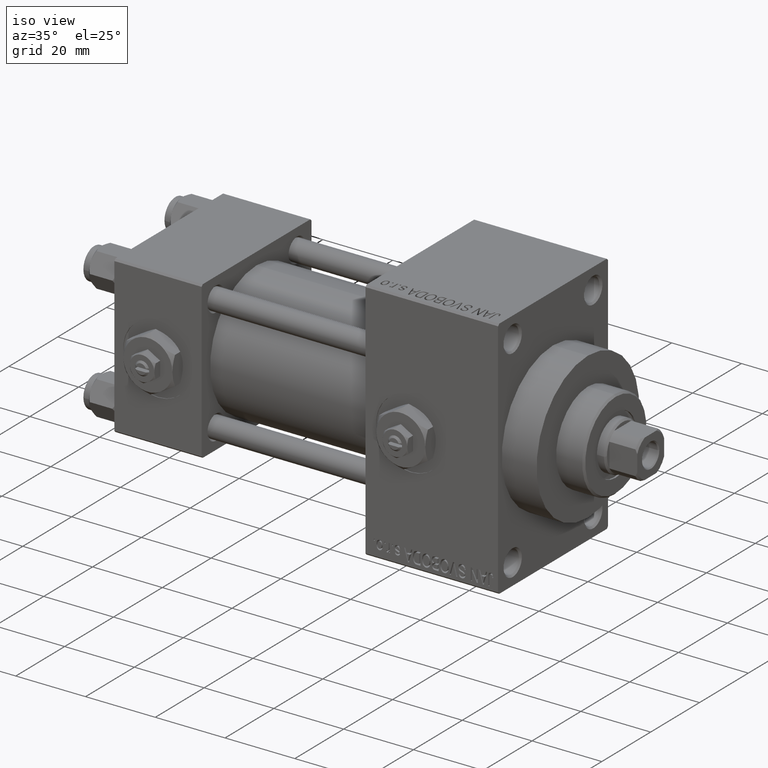
[diagram: clean part render]
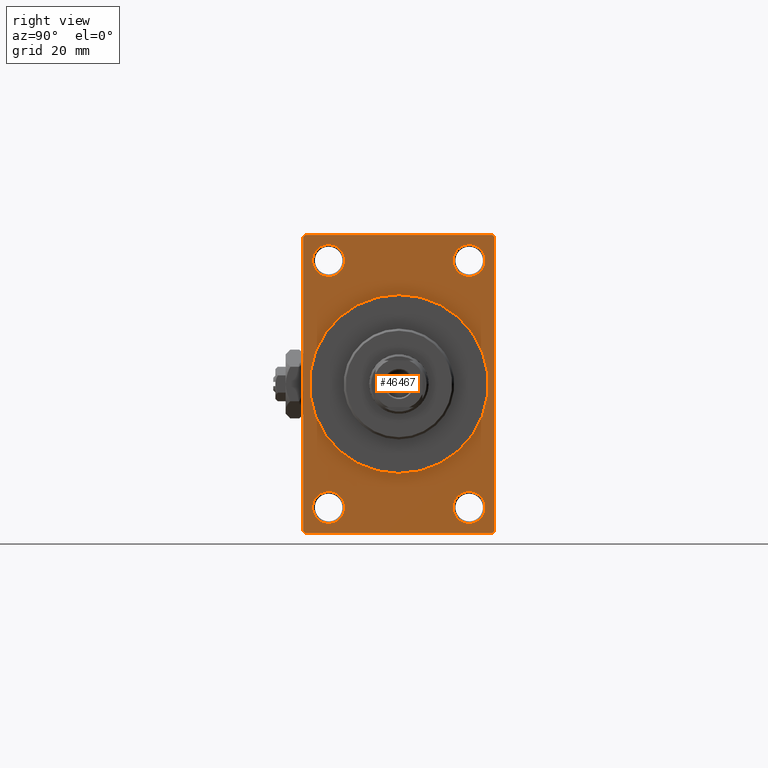
[diagram: tour spotlight — one face highlighted and labeled with its STEP entity id]
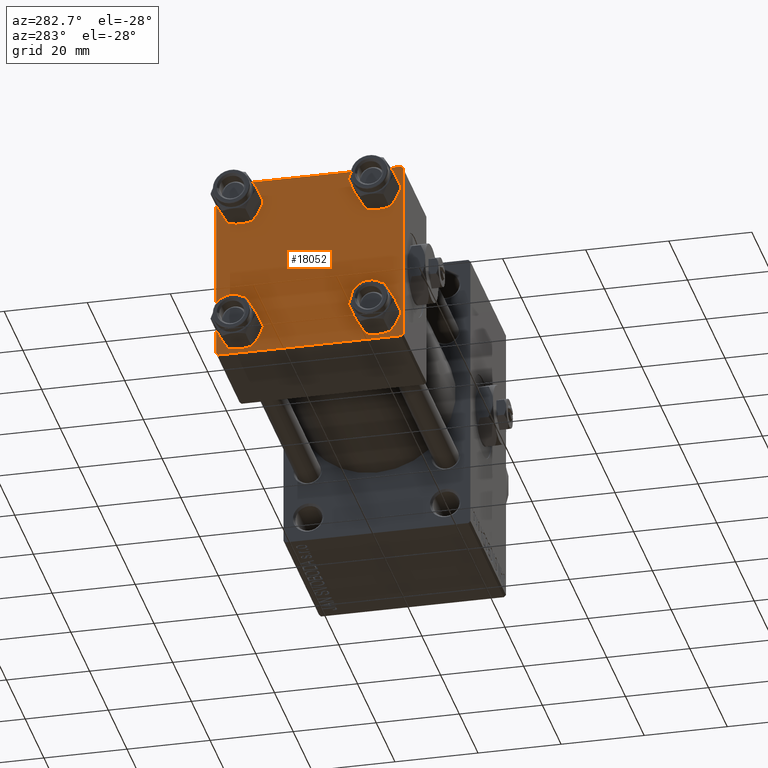
[diagram: tour spotlight — one face highlighted and labeled with its STEP entity id]
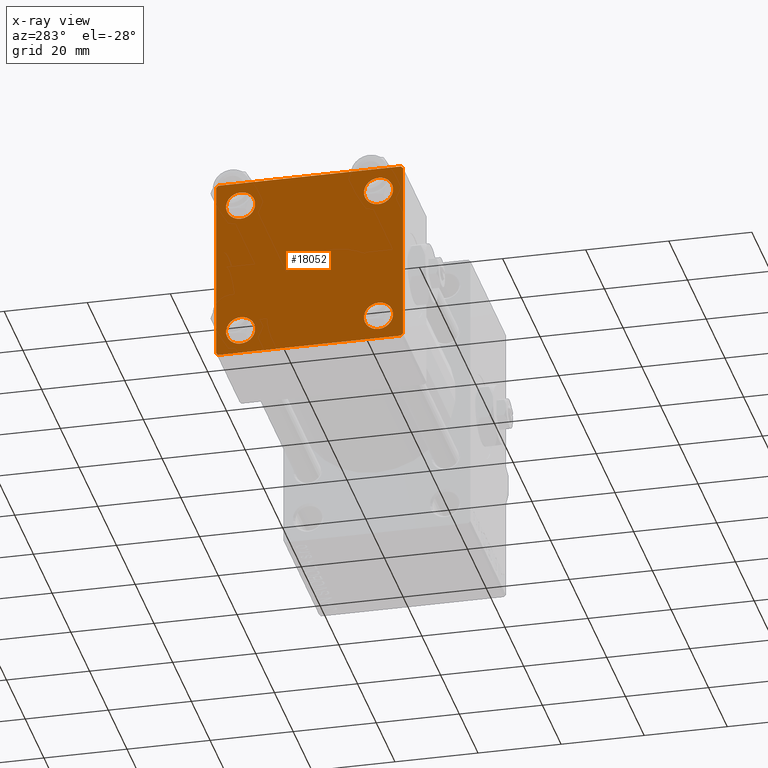
[diagram: x-ray of the same camera — body ghosted, this tour face saturated]
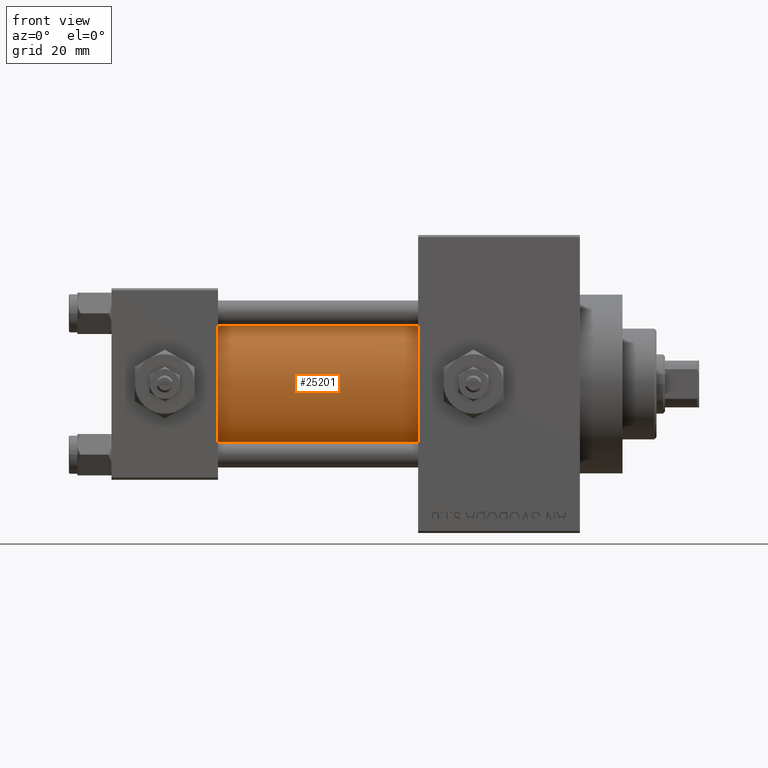
[diagram: tour spotlight — one face highlighted and labeled with its STEP entity id]
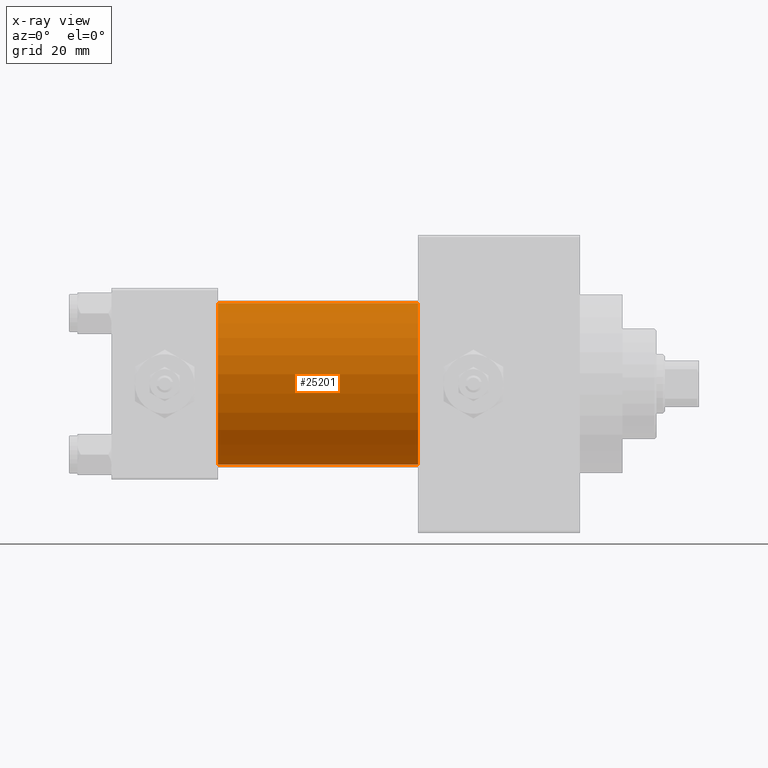
[diagram: x-ray of the same camera — body ghosted, this tour face saturated]
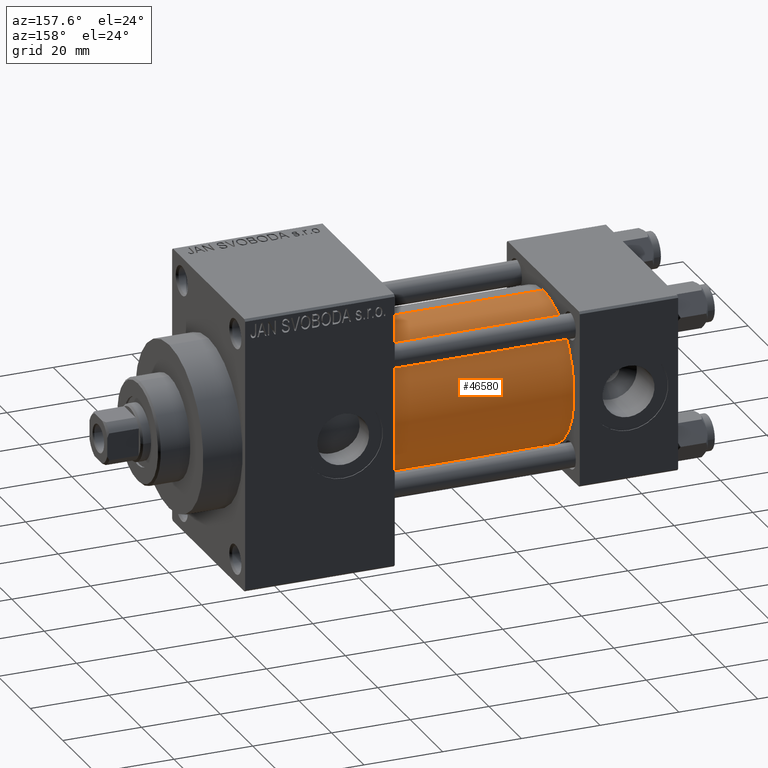
[diagram: tour spotlight — one face highlighted and labeled with its STEP entity id]
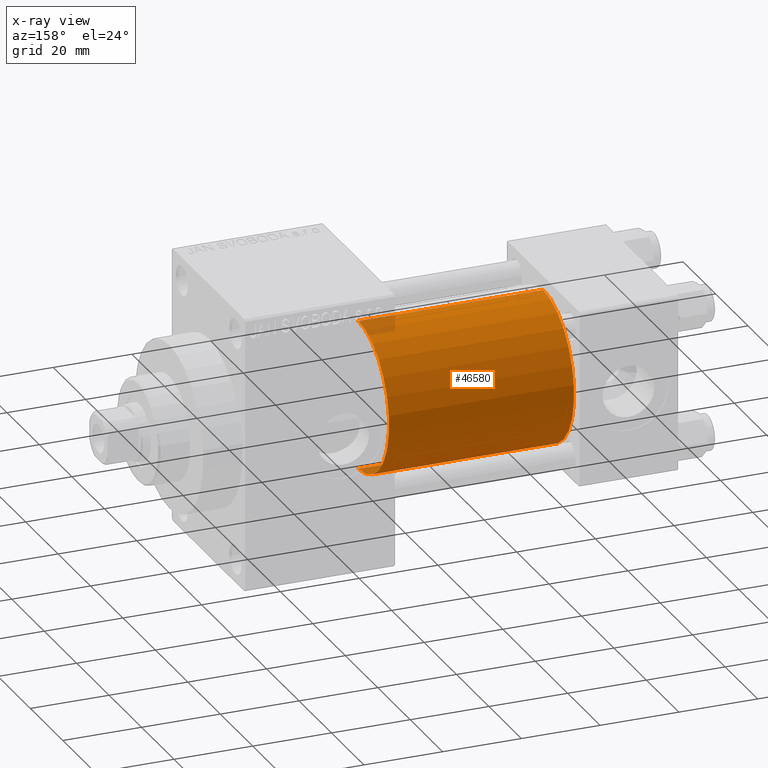
[diagram: x-ray of the same camera — body ghosted, this tour face saturated]
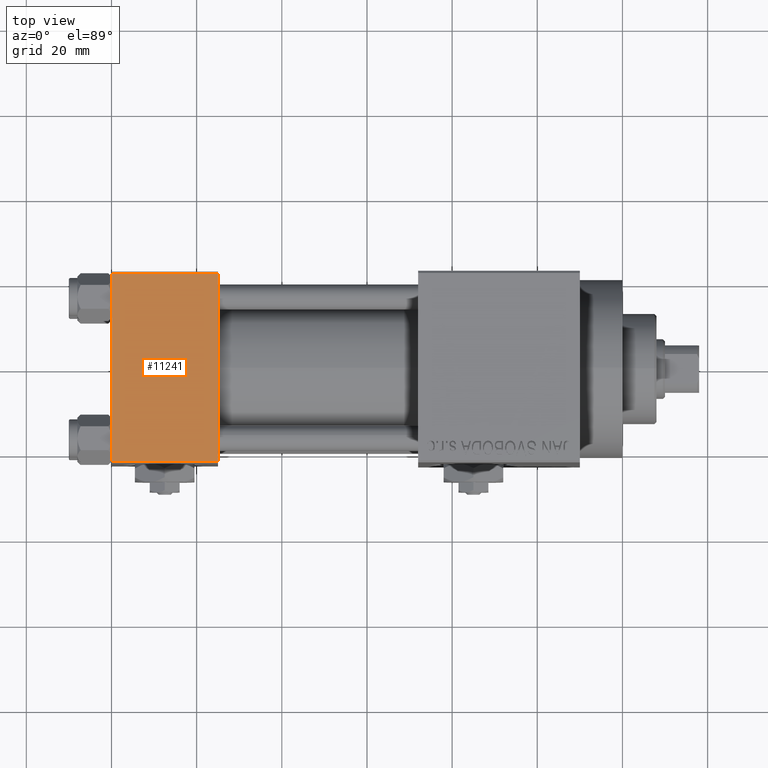
[diagram: tour spotlight — one face highlighted and labeled with its STEP entity id]
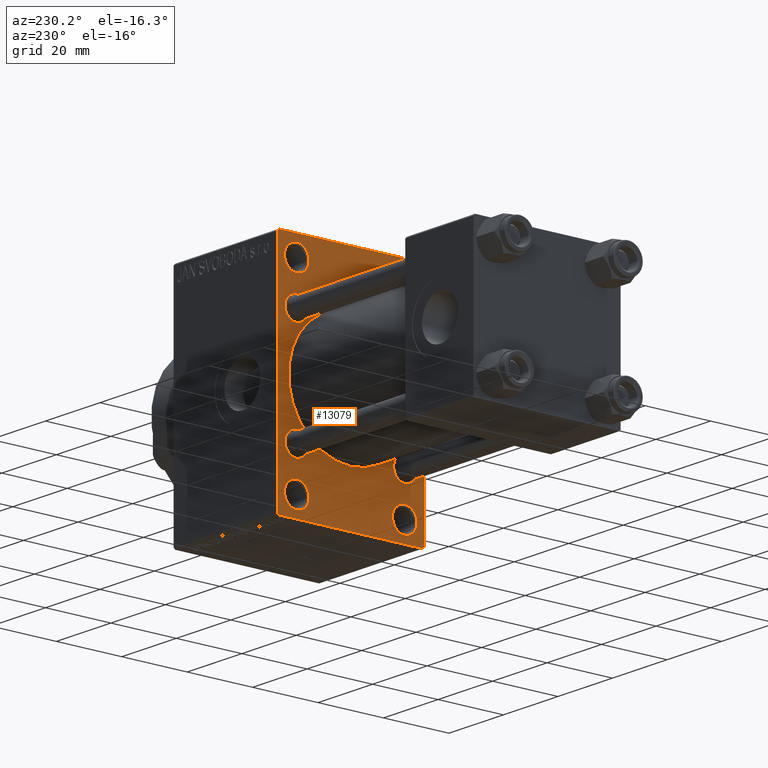
[diagram: tour spotlight — one face highlighted and labeled with its STEP entity id]
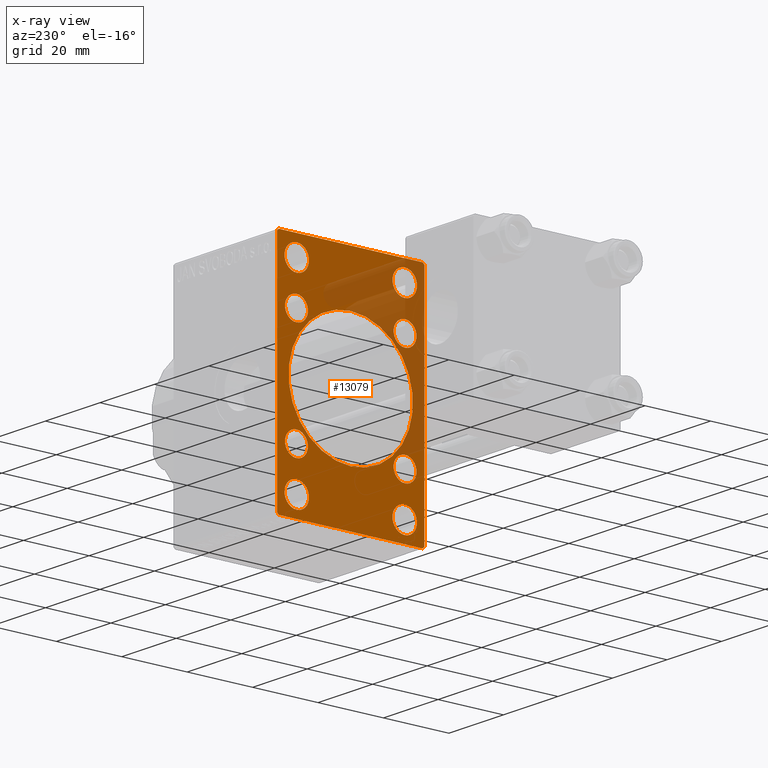
[diagram: x-ray of the same camera — body ghosted, this tour face saturated]
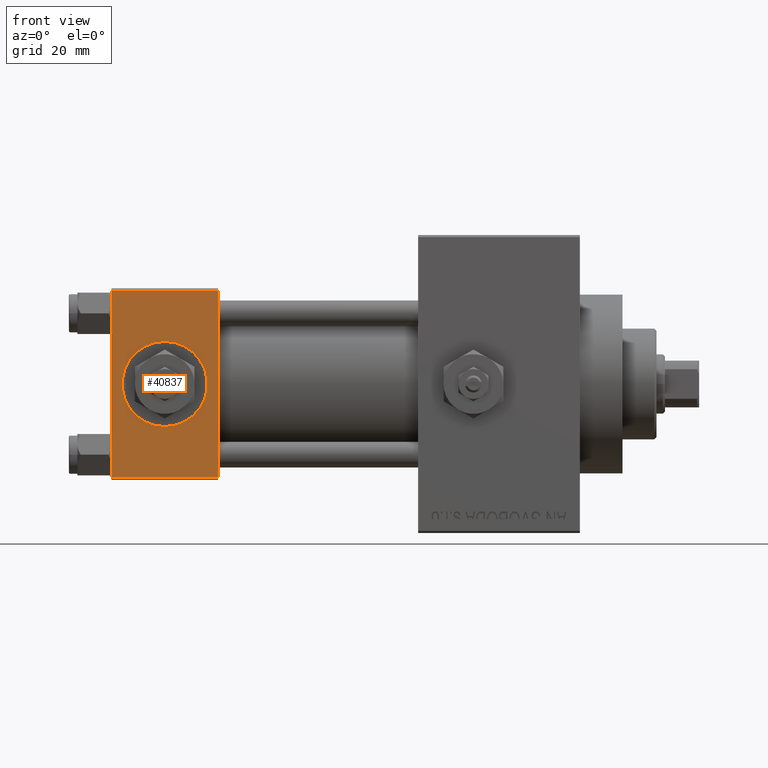
[diagram: tour spotlight — one face highlighted and labeled with its STEP entity id]
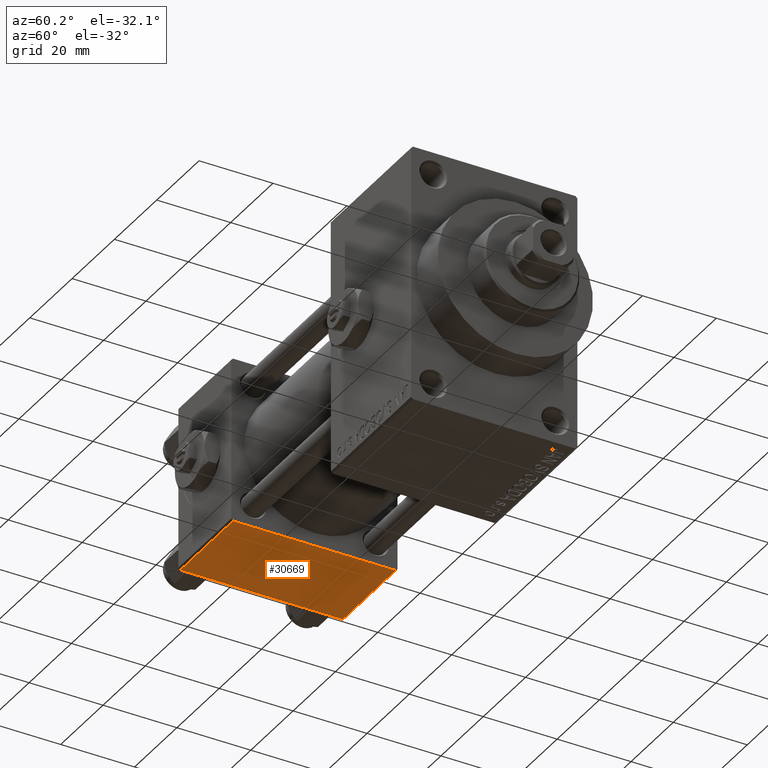
[diagram: tour spotlight — one face highlighted and labeled with its STEP entity id]
A machine part: a face-by-face anatomy tour. The part has 1202 B-rep faces; the first image is the clean iso view, then the 8 largest visible faces are spotlighted one at a time (largest first), each with its STEP entity span.

Face 1 — right view, entity #46467. In plain terms, the highlighted planar face has unit normal (-1, 0, 0).
Definition (entity closure, byte-faithful):
#759 = CARTESIAN_POINT ( 'NONE',  ( 110.0000000000000142, 16.50000000000000000, -32.75000000000011369 ) ) ;
#1146 = VECTOR ( 'NONE', #36968, 1000.000000000000000 ) ;
#1248 = VECTOR ( 'NONE', #37679, 1000.000000000000114 ) ;
#1679 = FACE_BOUND ( 'NONE', #37318, .T. ) ;
#1809 = EDGE_LOOP ( 'NONE', ( #34091, #14175 ) ) ;
#1881 = AXIS2_PLACEMENT_3D ( 'NONE', #9429, #32249, #47410 ) ;
#2233 = AXIS2_PLACEMENT_3D ( 'NONE', #34521, #8210, #4240 ) ;
#2346 = EDGE_CURVE ( 'NONE', #26507, #35974, #37182, .T. ) ;
#2656 = FACE_BOUND ( 'NONE', #38404, .T. ) ;
#2666 = AXIS2_PLACEMENT_3D ( 'NONE', #43785, #47272, #47024 ) ;
#3032 = CARTESIAN_POINT ( 'NONE',  ( 110.0000000000000142, -16.50000000000000000, 29.00000000000000711 ) ) ;
#3525 = CIRCLE ( 'NONE', #13786, 3.750000000000069278 ) ;
#4240 = DIRECTION ( 'NONE',  ( 0.000000000000000000, 0.000000000000000000, 1.000000000000000000 ) ) ;
#4322 = EDGE_CURVE ( 'NONE', #12404, #8270, #34252, .T. ) ;
#4611 = ORIENTED_EDGE ( 'NONE', *, *, #17514, .T. ) ;
#4649 = CARTESIAN_POINT ( 'NONE',  ( 110.0000000000000142, -22.00000000000000355, -35.00000000000000000 ) ) ;
#5025 = CIRCLE ( 'NONE', #1881, 3.750000000000069278 ) ;
#5492 = CARTESIAN_POINT ( 'NONE',  ( 110.0000000000000142, 22.49999999999999645, 34.50000000000001421 ) ) ;
#5639 = CARTESIAN_POINT ( 'NONE',  ( 110.0000000000000142, 0.000000000000000000, 0.000000000000000000 ) ) ;
#5713 = DIRECTION ( 'NONE',  ( 1.000000000000000000, 0.000000000000000000, 0.000000000000000000 ) ) ;
#5733 = CIRCLE ( 'NONE', #6553, 3.750000000000111022 ) ;
#5746 = ORIENTED_EDGE ( 'NONE', *, *, #47264, .T. ) ;
#5770 = ORIENTED_EDGE ( 'NONE', *, *, #11123, .F. ) ;
#5940 = CARTESIAN_POINT ( 'NONE',  ( 110.0000000000000142, -16.50000000000000000, 25.24999999999993960 ) ) ;
#6066 = CARTESIAN_POINT ( 'NONE',  ( 110.0000000000000142, 22.49999999999999645, -34.50000000000000000 ) ) ;
#6159 = AXIS2_PLACEMENT_3D ( 'NONE', #5639, #43131, #27962 ) ;
#6553 = AXIS2_PLACEMENT_3D ( 'NONE', #10368, #7156, #25506 ) ;
#6753 = DIRECTION ( 'NONE',  ( 0.000000000000000000, 0.000000000000000000, 1.000000000000000000 ) ) ;
#6933 = VERTEX_POINT ( 'NONE', #21834 ) ;
#7129 = VERTEX_POINT ( 'NONE', #41935 ) ;
#7147 = VECTOR ( 'NONE', #43475, 1000.000000000000114 ) ;
#7156 = DIRECTION ( 'NONE',  ( -1.000000000000000000, -0.000000000000000000, -0.000000000000000000 ) ) ;
#7214 = VECTOR ( 'NONE', #11749, 1000.000000000000000 ) ;
#7347 = EDGE_CURVE ( 'NONE', #8262, #14813, #15737, .T. ) ;
#7507 = CARTESIAN_POINT ( 'NONE',  ( 110.0000000000000142, 0.000000000000000000, 0.000000000000000000 ) ) ;
#7519 = ORIENTED_EDGE ( 'NONE', *, *, #35278, .F. ) ;
#8210 = DIRECTION ( 'NONE',  ( -1.000000000000000000, -0.000000000000000000, -0.000000000000000000 ) ) ;
#8262 = VERTEX_POINT ( 'NONE', #47556 ) ;
#8270 = VERTEX_POINT ( 'NONE', #42622 ) ;
#8571 = EDGE_CURVE ( 'NONE', #35821, #12404, #32530, .T. ) ;
#9429 = CARTESIAN_POINT ( 'NONE',  ( 110.0000000000000142, -16.50000000000000000, 29.00000000000000711 ) ) ;
#10181 = CARTESIAN_POINT ( 'NONE',  ( 110.0000000000000142, 2.571758278209441661E-15, -21.00000000000000000 ) ) ;
#10368 = CARTESIAN_POINT ( 'NONE',  ( 110.0000000000000142, 16.50000000000000000, -28.99999999999999289 ) ) ;
#10964 = VERTEX_POINT ( 'NONE', #21696 ) ;
#11123 = EDGE_CURVE ( 'NONE', #30211, #10964, #45051, .T. ) ;
#11749 = DIRECTION ( 'NONE',  ( 0.000000000000000000, -1.000000000000000000, 0.000000000000000000 ) ) ;
#11889 = CARTESIAN_POINT ( 'NONE',  ( 110.0000000000000142, 22.49999999999999645, 35.00000000000000000 ) ) ;
#12404 = VERTEX_POINT ( 'NONE', #48777 ) ;
#12414 = CARTESIAN_POINT ( 'NONE',  ( 110.0000000000000142, -16.50000000000000000, 32.75000000000007816 ) ) ;
#13529 = DIRECTION ( 'NONE',  ( -1.000000000000000000, -0.000000000000000000, -0.000000000000000000 ) ) ;
#13786 = AXIS2_PLACEMENT_3D ( 'NONE', #3032, #25591, #6753 ) ;
#14175 = ORIENTED_EDGE ( 'NONE', *, *, #22228, .T. ) ;
#14204 = AXIS2_PLACEMENT_3D ( 'NONE', #7507, #48963, #18911 ) ;
#14221 = ORIENTED_EDGE ( 'NONE', *, *, #33545, .T. ) ;
#14343 = EDGE_LOOP ( 'NONE', ( #29531, #18917 ) ) ;
#14723 = VERTEX_POINT ( 'NONE', #24821 ) ;
#14813 = VERTEX_POINT ( 'NONE', #45423 ) ;
#15145 = ORIENTED_EDGE ( 'NONE', *, *, #22468, .T. ) ;
#15240 = VERTEX_POINT ( 'NONE', #12414 ) ;
#15737 = LINE ( 'NONE', #16229, #43552 ) ;
#16229 = CARTESIAN_POINT ( 'NONE',  ( 110.0000000000000142, -22.50000000000000355, 35.00000000000000000 ) ) ;
#16794 = FACE_OUTER_BOUND ( 'NONE', #47260, .T. ) ;
#16956 = VECTOR ( 'NONE', #27012, 1000.000000000000000 ) ;
#17199 = AXIS2_PLACEMENT_3D ( 'NONE', #28663, #13529, #35893 ) ;
#17514 = EDGE_CURVE ( 'NONE', #28467, #7129, #27223, .T. ) ;
#17785 = FACE_BOUND ( 'NONE', #14343, .T. ) ;
#17910 = ORIENTED_EDGE ( 'NONE', *, *, #36082, .T. ) ;
#18425 = DIRECTION ( 'NONE',  ( 0.000000000000000000, 0.000000000000000000, 1.000000000000000000 ) ) ;
#18911 = DIRECTION ( 'NONE',  ( 0.000000000000000000, 0.000000000000000000, -1.000000000000000000 ) ) ;
#18917 = ORIENTED_EDGE ( 'NONE', *, *, #26113, .F. ) ;
#19052 = CARTESIAN_POINT ( 'NONE',  ( 110.0000000000000142, 16.50000000000000000, 25.24999999999988987 ) ) ;
#20295 = CIRCLE ( 'NONE', #41709, 21.00000000000000000 ) ;
#20476 = EDGE_CURVE ( 'NONE', #23718, #15240, #5025, .T. ) ;
#20836 = DIRECTION ( 'NONE',  ( 0.000000000000000000, 0.000000000000000000, -1.000000000000000000 ) ) ;
#21258 = FACE_BOUND ( 'NONE', #1809, .T. ) ;
#21604 = CARTESIAN_POINT ( 'NONE',  ( 110.0000000000000142, 22.00000000000001066, 35.00000000000000000 ) ) ;
#21696 = CARTESIAN_POINT ( 'NONE',  ( 110.0000000000000142, -21.99999999999998934, -35.00000000000000000 ) ) ;
#21834 = CARTESIAN_POINT ( 'NONE',  ( 110.0000000000000142, 16.50000000000000000, -25.24999999999987921 ) ) ;
#22228 = EDGE_CURVE ( 'NONE', #15240, #23718, #3525, .T. ) ;
#22385 = ORIENTED_EDGE ( 'NONE', *, *, #31247, .T. ) ;
#22468 = EDGE_CURVE ( 'NONE', #8270, #8262, #44661, .T. ) ;
#22641 = DIRECTION ( 'NONE',  ( -1.000000000000000000, -0.000000000000000000, -0.000000000000000000 ) ) ;
#23476 = VERTEX_POINT ( 'NONE', #6066 ) ;
#23591 = ORIENTED_EDGE ( 'NONE', *, *, #8571, .T. ) ;
#23718 = VERTEX_POINT ( 'NONE', #5940 ) ;
#24042 = CIRCLE ( 'NONE', #2666, 3.750000000000114575 ) ;
#24821 = CARTESIAN_POINT ( 'NONE',  ( 110.0000000000000142, -16.50000000000000000, -32.75000000000011369 ) ) ;
#25506 = DIRECTION ( 'NONE',  ( 0.000000000000000000, 0.000000000000000000, 1.000000000000000000 ) ) ;
#25591 = DIRECTION ( 'NONE',  ( -1.000000000000000000, -0.000000000000000000, -0.000000000000000000 ) ) ;
#26113 = EDGE_CURVE ( 'NONE', #35974, #26507, #20295, .T. ) ;
#26389 = EDGE_LOOP ( 'NONE', ( #43377, #5746 ) ) ;
#26431 = AXIS2_PLACEMENT_3D ( 'NONE', #30310, #22641, #18425 ) ;
#26507 = VERTEX_POINT ( 'NONE', #40645 ) ;
#26526 = CIRCLE ( 'NONE', #36020, 3.750000000000111022 ) ;
#26783 = CARTESIAN_POINT ( 'NONE',  ( 110.0000000000000142, 16.50000000000000000, -28.99999999999999289 ) ) ;
#27012 = DIRECTION ( 'NONE',  ( 0.000000000000000000, 0.000000000000000000, -1.000000000000000000 ) ) ;
#27223 = CIRCLE ( 'NONE', #26431, 3.750000000000114575 ) ;
#27962 = DIRECTION ( 'NONE',  ( -0.000000000000000000, 0.000000000000000000, 1.000000000000000000 ) ) ;
#28085 = ORIENTED_EDGE ( 'NONE', *, *, #7347, .T. ) ;
#28097 = VERTEX_POINT ( 'NONE', #34376 ) ;
#28467 = VERTEX_POINT ( 'NONE', #19052 ) ;
#28652 = EDGE_CURVE ( 'NONE', #14723, #28097, #40996, .T. ) ;
#28663 = CARTESIAN_POINT ( 'NONE',  ( 110.0000000000000142, -16.50000000000000000, -28.99999999999999289 ) ) ;
#28677 = PLANE ( 'NONE',  #6159 ) ;
#29531 = ORIENTED_EDGE ( 'NONE', *, *, #2346, .F. ) ;
#30211 = VERTEX_POINT ( 'NONE', #37360 ) ;
#30310 = CARTESIAN_POINT ( 'NONE',  ( 110.0000000000000142, 16.50000000000000000, 29.00000000000000355 ) ) ;
#30359 = CARTESIAN_POINT ( 'NONE',  ( 110.0000000000000142, 22.49999999999999645, -35.00000000000000000 ) ) ;
#30742 = LINE ( 'NONE', #11889, #16956 ) ;
#30802 = ORIENTED_EDGE ( 'NONE', *, *, #48005, .T. ) ;
#30869 = DIRECTION ( 'NONE',  ( 0.000000000000000000, 0.000000000000000000, -1.000000000000000000 ) ) ;
#31247 = EDGE_CURVE ( 'NONE', #43184, #6933, #5733, .T. ) ;
#32249 = DIRECTION ( 'NONE',  ( -1.000000000000000000, -0.000000000000000000, -0.000000000000000000 ) ) ;
#32530 = LINE ( 'NONE', #21604, #7147 ) ;
#32751 = CARTESIAN_POINT ( 'NONE',  ( 110.0000000000000142, 0.000000000000000000, 0.000000000000000000 ) ) ;
#33545 = EDGE_CURVE ( 'NONE', #7129, #28467, #24042, .T. ) ;
#34016 = DIRECTION ( 'NONE',  ( 0.000000000000000000, 0.000000000000000000, 1.000000000000000000 ) ) ;
#34091 = ORIENTED_EDGE ( 'NONE', *, *, #20476, .T. ) ;
#34252 = LINE ( 'NONE', #38695, #34849 ) ;
#34376 = CARTESIAN_POINT ( 'NONE',  ( 110.0000000000000142, -16.50000000000000000, -25.24999999999987921 ) ) ;
#34521 = CARTESIAN_POINT ( 'NONE',  ( 110.0000000000000142, -16.50000000000000000, -28.99999999999999289 ) ) ;
#34571 = ORIENTED_EDGE ( 'NONE', *, *, #4322, .T. ) ;
#34849 = VECTOR ( 'NONE', #41945, 1000.000000000000000 ) ;
#35278 = EDGE_CURVE ( 'NONE', #35821, #23476, #30742, .T. ) ;
#35821 = VERTEX_POINT ( 'NONE', #5492 ) ;
#35893 = DIRECTION ( 'NONE',  ( 0.000000000000000000, 0.000000000000000000, 1.000000000000000000 ) ) ;
#35974 = VERTEX_POINT ( 'NONE', #10181 ) ;
#36020 = AXIS2_PLACEMENT_3D ( 'NONE', #26783, #42431, #34016 ) ;
#36082 = EDGE_CURVE ( 'NONE', #6933, #43184, #26526, .T. ) ;
#36968 = DIRECTION ( 'NONE',  ( -0.000000000000000000, -0.7071067811865378028, -0.7071067811865573427 ) ) ;
#37039 = DIRECTION ( 'NONE',  ( -0.000000000000000000, 0.7071067811865378028, 0.7071067811865573427 ) ) ;
#37182 = CIRCLE ( 'NONE', #14204, 21.00000000000000000 ) ;
#37318 = EDGE_LOOP ( 'NONE', ( #22385, #17910 ) ) ;
#37360 = CARTESIAN_POINT ( 'NONE',  ( 110.0000000000000142, 22.00000000000001066, -35.00000000000000000 ) ) ;
#37679 = DIRECTION ( 'NONE',  ( 0.000000000000000000, 0.7071067811865474617, -0.7071067811865474617 ) ) ;
#38404 = EDGE_LOOP ( 'NONE', ( #4611, #14221 ) ) ;
#38639 = LINE ( 'NONE', #4649, #1248 ) ;
#38695 = CARTESIAN_POINT ( 'NONE',  ( 110.0000000000000142, 22.49999999999999645, 35.00000000000000000 ) ) ;
#40645 = CARTESIAN_POINT ( 'NONE',  ( 110.0000000000000142, 0.000000000000000000, 21.00000000000000000 ) ) ;
#40996 = CIRCLE ( 'NONE', #17199, 3.750000000000111022 ) ;
#41190 = EDGE_CURVE ( 'NONE', #14813, #10964, #38639, .T. ) ;
#41258 = LINE ( 'NONE', #48707, #49016 ) ;
#41709 = AXIS2_PLACEMENT_3D ( 'NONE', #32751, #5713, #20836 ) ;
#41935 = CARTESIAN_POINT ( 'NONE',  ( 110.0000000000000142, 16.50000000000000000, 32.75000000000012079 ) ) ;
#41945 = DIRECTION ( 'NONE',  ( 0.000000000000000000, -1.000000000000000000, 0.000000000000000000 ) ) ;
#42431 = DIRECTION ( 'NONE',  ( -1.000000000000000000, -0.000000000000000000, -0.000000000000000000 ) ) ;
#42622 = CARTESIAN_POINT ( 'NONE',  ( 110.0000000000000142, -22.00000000000000355, 35.00000000000000000 ) ) ;
#43131 = DIRECTION ( 'NONE',  ( -1.000000000000000000, 0.000000000000000000, -0.000000000000000000 ) ) ;
#43184 = VERTEX_POINT ( 'NONE', #759 ) ;
#43374 = FACE_BOUND ( 'NONE', #26389, .T. ) ;
#43377 = ORIENTED_EDGE ( 'NONE', *, *, #28652, .T. ) ;
#43475 = DIRECTION ( 'NONE',  ( 0.000000000000000000, -0.7071067811865474617, 0.7071067811865474617 ) ) ;
#43552 = VECTOR ( 'NONE', #30869, 1000.000000000000000 ) ;
#43785 = CARTESIAN_POINT ( 'NONE',  ( 110.0000000000000142, 16.50000000000000000, 29.00000000000000355 ) ) ;
#44418 = CARTESIAN_POINT ( 'NONE',  ( 110.0000000000000142, -22.50000000000000355, 34.50000000000000000 ) ) ;
#44661 = LINE ( 'NONE', #44418, #1146 ) ;
#45051 = LINE ( 'NONE', #30359, #7214 ) ;
#45086 = CIRCLE ( 'NONE', #2233, 3.750000000000111022 ) ;
#45213 = ORIENTED_EDGE ( 'NONE', *, *, #41190, .T. ) ;
#45423 = CARTESIAN_POINT ( 'NONE',  ( 110.0000000000000142, -22.50000000000000355, -34.50000000000000000 ) ) ;
#46467 = ADVANCED_FACE ( 'NONE', ( #21258, #43374, #1679, #2656, #17785, #16794 ), #28677, .F. ) ;
#47024 = DIRECTION ( 'NONE',  ( 0.000000000000000000, 0.000000000000000000, 1.000000000000000000 ) ) ;
#47260 = EDGE_LOOP ( 'NONE', ( #28085, #45213, #5770, #30802, #7519, #23591, #34571, #15145 ) ) ;
#47264 = EDGE_CURVE ( 'NONE', #28097, #14723, #45086, .T. ) ;
#47272 = DIRECTION ( 'NONE',  ( -1.000000000000000000, -0.000000000000000000, -0.000000000000000000 ) ) ;
#47410 = DIRECTION ( 'NONE',  ( 0.000000000000000000, 0.000000000000000000, 1.000000000000000000 ) ) ;
#47556 = CARTESIAN_POINT ( 'NONE',  ( 110.0000000000000142, -22.50000000000000355, 34.50000000000000000 ) ) ;
#48005 = EDGE_CURVE ( 'NONE', #30211, #23476, #41258, .T. ) ;
#48707 = CARTESIAN_POINT ( 'NONE',  ( 110.0000000000000142, 22.49999999999999645, -34.50000000000000000 ) ) ;
#48777 = CARTESIAN_POINT ( 'NONE',  ( 110.0000000000000142, 22.00000000000001066, 35.00000000000000000 ) ) ;
#48963 = DIRECTION ( 'NONE',  ( 1.000000000000000000, 0.000000000000000000, 0.000000000000000000 ) ) ;
#49016 = VECTOR ( 'NONE', #37039, 1000.000000000000000 ) ;

Face 2 — auxiliary view, entity #18052. An x-ray twin of the same camera follows (body ghosted, this face saturated) — the face is partly hidden behind the body. In plain terms, the highlighted planar face has unit normal (-1, 0, 0).
Definition (entity closure, byte-faithful):
#73 = EDGE_CURVE ( 'NONE', #37020, #3026, #23132, .T. ) ;
#90 = DIRECTION ( 'NONE',  ( -0.000000000000000000, 0.7071067811865525687, 0.7071067811865425767 ) ) ;
#97 = CARTESIAN_POINT ( 'NONE',  ( 0.000000000000000000, 16.59999999999999787, 13.10000000000000675 ) ) ;
#170 = CARTESIAN_POINT ( 'NONE',  ( 0.000000000000000000, -22.50000000000000000, 22.50000000000000000 ) ) ;
#924 = VERTEX_POINT ( 'NONE', #97 ) ;
#1069 = EDGE_LOOP ( 'NONE', ( #43315, #48284 ) ) ;
#1301 = EDGE_LOOP ( 'NONE', ( #45556, #21184 ) ) ;
#1438 = ORIENTED_EDGE ( 'NONE', *, *, #27545, .T. ) ;
#1917 = CARTESIAN_POINT ( 'NONE',  ( 0.000000000000000000, 0.000000000000000000, 0.000000000000000000 ) ) ;
#2109 = ORIENTED_EDGE ( 'NONE', *, *, #28749, .T. ) ;
#2121 = DIRECTION ( 'NONE',  ( 0.000000000000000000, 0.000000000000000000, 1.000000000000000000 ) ) ;
#2160 = VERTEX_POINT ( 'NONE', #17933 ) ;
#2651 = FACE_BOUND ( 'NONE', #33243, .T. ) ;
#2979 = EDGE_CURVE ( 'NONE', #20290, #15921, #3925, .T. ) ;
#3026 = VERTEX_POINT ( 'NONE', #46987 ) ;
#3305 = EDGE_LOOP ( 'NONE', ( #1438, #35125 ) ) ;
#3499 = CARTESIAN_POINT ( 'NONE',  ( 0.000000000000000000, -21.99999999999997158, -22.50000000000000711 ) ) ;
#3566 = VECTOR ( 'NONE', #47754, 1000.000000000000000 ) ;
#3925 = CIRCLE ( 'NONE', #24510, 3.499999999999996003 ) ;
#4016 = DIRECTION ( 'NONE',  ( -0.000000000000000000, -0.7071067811865426878, -0.7071067811865524577 ) ) ;
#5079 = CARTESIAN_POINT ( 'NONE',  ( 0.000000000000000000, -16.59999999999999076, -16.60000000000000853 ) ) ;
#5298 = DIRECTION ( 'NONE',  ( 1.000000000000000000, -0.000000000000000000, 0.000000000000000000 ) ) ;
#6524 = AXIS2_PLACEMENT_3D ( 'NONE', #13033, #28171, #35148 ) ;
#6709 = VECTOR ( 'NONE', #40243, 1000.000000000000000 ) ;
#7714 = VERTEX_POINT ( 'NONE', #3499 ) ;
#7982 = CARTESIAN_POINT ( 'NONE',  ( 0.000000000000000000, -16.59999999999999076, -20.10000000000000497 ) ) ;
#9661 = VECTOR ( 'NONE', #35022, 1000.000000000000000 ) ;
#10062 = ORIENTED_EDGE ( 'NONE', *, *, #13668, .T. ) ;
#10370 = DIRECTION ( 'NONE',  ( 0.000000000000000000, 0.000000000000000000, 1.000000000000000000 ) ) ;
#10552 = AXIS2_PLACEMENT_3D ( 'NONE', #5079, #46544, #13657 ) ;
#11439 = CARTESIAN_POINT ( 'NONE',  ( 0.000000000000000000, 21.99999999999999289, -22.49999999999999645 ) ) ;
#11845 = EDGE_CURVE ( 'NONE', #924, #24059, #19917, .T. ) ;
#12258 = CARTESIAN_POINT ( 'NONE',  ( 0.000000000000000000, -16.59999999999999076, -16.60000000000000853 ) ) ;
#12783 = AXIS2_PLACEMENT_3D ( 'NONE', #35864, #43325, #2121 ) ;
#13033 = CARTESIAN_POINT ( 'NONE',  ( 0.000000000000000000, 16.59999999999999787, -16.60000000000000497 ) ) ;
#13061 = FACE_BOUND ( 'NONE', #1069, .T. ) ;
#13181 = CARTESIAN_POINT ( 'NONE',  ( 0.000000000000000000, 22.50000000000000000, -22.49999999999999645 ) ) ;
#13537 = FACE_BOUND ( 'NONE', #1301, .T. ) ;
#13657 = DIRECTION ( 'NONE',  ( 0.000000000000000000, 0.000000000000000000, 1.000000000000000000 ) ) ;
#13668 = EDGE_CURVE ( 'NONE', #7714, #30582, #46691, .T. ) ;
#13725 = CARTESIAN_POINT ( 'NONE',  ( 0.000000000000000000, 22.50000000000000000, 22.50000000000000355 ) ) ;
#14084 = DIRECTION ( 'NONE',  ( 1.000000000000000000, -0.000000000000000000, 0.000000000000000000 ) ) ;
#14229 = LINE ( 'NONE', #13725, #3566 ) ;
#14494 = EDGE_CURVE ( 'NONE', #23076, #20034, #35075, .T. ) ;
#14529 = CARTESIAN_POINT ( 'NONE',  ( 0.000000000000000000, 22.24999999999999645, 22.24999999999999645 ) ) ;
#14801 = CARTESIAN_POINT ( 'NONE',  ( 0.000000000000000000, 16.59999999999999787, 20.10000000000000142 ) ) ;
#14936 = LINE ( 'NONE', #33815, #40704 ) ;
#15427 = DIRECTION ( 'NONE',  ( 0.000000000000000000, 0.000000000000000000, 1.000000000000000000 ) ) ;
#15921 = VERTEX_POINT ( 'NONE', #32373 ) ;
#16848 = VERTEX_POINT ( 'NONE', #45353 ) ;
#16993 = CIRCLE ( 'NONE', #20956, 3.499999999999996003 ) ;
#17039 = FACE_BOUND ( 'NONE', #3305, .T. ) ;
#17409 = CARTESIAN_POINT ( 'NONE',  ( 0.000000000000000000, 16.59999999999999787, -16.60000000000000497 ) ) ;
#17933 = CARTESIAN_POINT ( 'NONE',  ( 0.000000000000000000, 16.59999999999999787, -13.10000000000000675 ) ) ;
#18052 = ADVANCED_FACE ( 'NONE', ( #13537, #13061, #2651, #17039, #40368 ), #32175, .T. ) ;
#18515 = DIRECTION ( 'NONE',  ( 0.000000000000000000, 0.7071067811865474617, -0.7071067811865474617 ) ) ;
#18648 = EDGE_CURVE ( 'NONE', #2160, #16848, #16993, .T. ) ;
#18675 = EDGE_CURVE ( 'NONE', #47269, #7714, #47454, .T. ) ;
#18996 = LINE ( 'NONE', #14529, #45784 ) ;
#19917 = CIRCLE ( 'NONE', #12783, 3.499999999999996003 ) ;
#20034 = VERTEX_POINT ( 'NONE', #32063 ) ;
#20267 = EDGE_CURVE ( 'NONE', #47471, #47269, #14936, .T. ) ;
#20290 = VERTEX_POINT ( 'NONE', #7982 ) ;
#20771 = DIRECTION ( 'NONE',  ( 1.000000000000000000, -0.000000000000000000, 0.000000000000000000 ) ) ;
#20956 = AXIS2_PLACEMENT_3D ( 'NONE', #17409, #36523, #28801 ) ;
#21184 = ORIENTED_EDGE ( 'NONE', *, *, #46109, .T. ) ;
#21423 = ORIENTED_EDGE ( 'NONE', *, *, #30012, .T. ) ;
#22314 = ORIENTED_EDGE ( 'NONE', *, *, #18675, .T. ) ;
#23076 = VERTEX_POINT ( 'NONE', #48770 ) ;
#23132 = LINE ( 'NONE', #26612, #31312 ) ;
#23535 = EDGE_CURVE ( 'NONE', #37451, #3026, #14229, .T. ) ;
#24059 = VERTEX_POINT ( 'NONE', #14801 ) ;
#24140 = EDGE_CURVE ( 'NONE', #33328, #47471, #25977, .T. ) ;
#24386 = CIRCLE ( 'NONE', #29923, 3.499999999999996003 ) ;
#24510 = AXIS2_PLACEMENT_3D ( 'NONE', #12258, #5298, #27384 ) ;
#24721 = DIRECTION ( 'NONE',  ( -0.000000000000000000, 0.000000000000000000, 1.000000000000000000 ) ) ;
#25684 = AXIS2_PLACEMENT_3D ( 'NONE', #1917, #28927, #24721 ) ;
#25977 = LINE ( 'NONE', #28934, #35290 ) ;
#25978 = EDGE_LOOP ( 'NONE', ( #47991, #28406, #22314, #10062, #48032, #36376, #34880, #2109 ) ) ;
#26001 = VECTOR ( 'NONE', #31138, 1000.000000000000000 ) ;
#26612 = CARTESIAN_POINT ( 'NONE',  ( -0.000000000000000000, -22.24999999999984013, 22.25000000000015277 ) ) ;
#27064 = CARTESIAN_POINT ( 'NONE',  ( 0.000000000000000000, -22.25000000000014566, -22.24999999999984013 ) ) ;
#27384 = DIRECTION ( 'NONE',  ( 0.000000000000000000, 0.000000000000000000, 1.000000000000000000 ) ) ;
#27545 = EDGE_CURVE ( 'NONE', #24059, #924, #42561, .T. ) ;
#27860 = ORIENTED_EDGE ( 'NONE', *, *, #18648, .T. ) ;
#28171 = DIRECTION ( 'NONE',  ( 1.000000000000000000, -0.000000000000000000, 0.000000000000000000 ) ) ;
#28406 = ORIENTED_EDGE ( 'NONE', *, *, #20267, .T. ) ;
#28749 = EDGE_CURVE ( 'NONE', #37451, #33328, #18996, .T. ) ;
#28801 = DIRECTION ( 'NONE',  ( 0.000000000000000000, 0.000000000000000000, 1.000000000000000000 ) ) ;
#28836 = CARTESIAN_POINT ( 'NONE',  ( 0.000000000000000000, -16.59999999999999076, 16.60000000000000853 ) ) ;
#28927 = DIRECTION ( 'NONE',  ( -1.000000000000000000, 0.000000000000000000, -0.000000000000000000 ) ) ;
#28934 = CARTESIAN_POINT ( 'NONE',  ( 0.000000000000000000, 22.50000000000000000, 22.50000000000000355 ) ) ;
#28949 = DIRECTION ( 'NONE',  ( 0.000000000000000000, 0.000000000000000000, 1.000000000000000000 ) ) ;
#29246 = CARTESIAN_POINT ( 'NONE',  ( 0.000000000000000000, 22.50000000000000000, -21.99999999999996803 ) ) ;
#29565 = CIRCLE ( 'NONE', #10552, 3.499999999999996003 ) ;
#29853 = CARTESIAN_POINT ( 'NONE',  ( 0.000000000000000000, -22.50000000000000000, 22.00000000000000000 ) ) ;
#29923 = AXIS2_PLACEMENT_3D ( 'NONE', #47103, #20771, #28949 ) ;
#30012 = EDGE_CURVE ( 'NONE', #16848, #2160, #40567, .T. ) ;
#30582 = VERTEX_POINT ( 'NONE', #37793 ) ;
#31138 = DIRECTION ( 'NONE',  ( 0.000000000000000000, 0.000000000000000000, -1.000000000000000000 ) ) ;
#31312 = VECTOR ( 'NONE', #90, 999.9999999999998863 ) ;
#31433 = CARTESIAN_POINT ( 'NONE',  ( 0.000000000000000000, 21.99999999999999289, 22.50000000000000355 ) ) ;
#32063 = CARTESIAN_POINT ( 'NONE',  ( 0.000000000000000000, -16.59999999999999076, 13.10000000000001030 ) ) ;
#32175 = PLANE ( 'NONE',  #25684 ) ;
#32373 = CARTESIAN_POINT ( 'NONE',  ( 0.000000000000000000, -16.59999999999999076, -13.10000000000001030 ) ) ;
#32678 = EDGE_CURVE ( 'NONE', #15921, #20290, #29565, .T. ) ;
#32704 = CARTESIAN_POINT ( 'NONE',  ( 0.000000000000000000, 16.59999999999999787, 16.60000000000000497 ) ) ;
#33243 = EDGE_LOOP ( 'NONE', ( #27860, #21423 ) ) ;
#33328 = VERTEX_POINT ( 'NONE', #47822 ) ;
#33679 = DIRECTION ( 'NONE',  ( 0.000000000000000000, 0.000000000000000000, -1.000000000000000000 ) ) ;
#33815 = CARTESIAN_POINT ( 'NONE',  ( 0.000000000000000000, 22.25000000000014566, -22.24999999999984013 ) ) ;
#34552 = DIRECTION ( 'NONE',  ( 1.000000000000000000, -0.000000000000000000, 0.000000000000000000 ) ) ;
#34880 = ORIENTED_EDGE ( 'NONE', *, *, #23535, .F. ) ;
#35022 = DIRECTION ( 'NONE',  ( 0.000000000000000000, -0.7071067811865426878, 0.7071067811865524577 ) ) ;
#35075 = CIRCLE ( 'NONE', #35883, 3.499999999999996003 ) ;
#35125 = ORIENTED_EDGE ( 'NONE', *, *, #11845, .T. ) ;
#35148 = DIRECTION ( 'NONE',  ( 0.000000000000000000, 0.000000000000000000, 1.000000000000000000 ) ) ;
#35290 = VECTOR ( 'NONE', #33679, 1000.000000000000000 ) ;
#35394 = AXIS2_PLACEMENT_3D ( 'NONE', #32704, #14084, #10370 ) ;
#35864 = CARTESIAN_POINT ( 'NONE',  ( 0.000000000000000000, 16.59999999999999787, 16.60000000000000497 ) ) ;
#35883 = AXIS2_PLACEMENT_3D ( 'NONE', #28836, #34552, #15427 ) ;
#36376 = ORIENTED_EDGE ( 'NONE', *, *, #73, .T. ) ;
#36523 = DIRECTION ( 'NONE',  ( 1.000000000000000000, -0.000000000000000000, 0.000000000000000000 ) ) ;
#37020 = VERTEX_POINT ( 'NONE', #29853 ) ;
#37451 = VERTEX_POINT ( 'NONE', #31433 ) ;
#37793 = CARTESIAN_POINT ( 'NONE',  ( 0.000000000000000000, -22.50000000000000000, -21.99999999999997158 ) ) ;
#39087 = LINE ( 'NONE', #170, #26001 ) ;
#40243 = DIRECTION ( 'NONE',  ( 0.000000000000000000, -1.000000000000000000, -2.312964634635742957E-16 ) ) ;
#40368 = FACE_OUTER_BOUND ( 'NONE', #25978, .T. ) ;
#40567 = CIRCLE ( 'NONE', #6524, 3.499999999999996003 ) ;
#40704 = VECTOR ( 'NONE', #4016, 1000.000000000000000 ) ;
#42561 = CIRCLE ( 'NONE', #35394, 3.499999999999996003 ) ;
#43315 = ORIENTED_EDGE ( 'NONE', *, *, #32678, .T. ) ;
#43325 = DIRECTION ( 'NONE',  ( 1.000000000000000000, -0.000000000000000000, 0.000000000000000000 ) ) ;
#45353 = CARTESIAN_POINT ( 'NONE',  ( 0.000000000000000000, 16.59999999999999787, -20.10000000000000142 ) ) ;
#45556 = ORIENTED_EDGE ( 'NONE', *, *, #14494, .T. ) ;
#45784 = VECTOR ( 'NONE', #18515, 1000.000000000000114 ) ;
#46109 = EDGE_CURVE ( 'NONE', #20034, #23076, #24386, .T. ) ;
#46544 = DIRECTION ( 'NONE',  ( 1.000000000000000000, -0.000000000000000000, 0.000000000000000000 ) ) ;
#46691 = LINE ( 'NONE', #27064, #9661 ) ;
#46729 = EDGE_CURVE ( 'NONE', #37020, #30582, #39087, .T. ) ;
#46987 = CARTESIAN_POINT ( 'NONE',  ( 0.000000000000000000, -21.99999999999997868, 22.50000000000000000 ) ) ;
#47103 = CARTESIAN_POINT ( 'NONE',  ( 0.000000000000000000, -16.59999999999999076, 16.60000000000000853 ) ) ;
#47269 = VERTEX_POINT ( 'NONE', #11439 ) ;
#47454 = LINE ( 'NONE', #13181, #6709 ) ;
#47471 = VERTEX_POINT ( 'NONE', #29246 ) ;
#47754 = DIRECTION ( 'NONE',  ( 0.000000000000000000, -1.000000000000000000, -7.709882115452476934E-17 ) ) ;
#47822 = CARTESIAN_POINT ( 'NONE',  ( 0.000000000000000000, 22.50000000000000000, 21.99999999999999645 ) ) ;
#47991 = ORIENTED_EDGE ( 'NONE', *, *, #24140, .T. ) ;
#48032 = ORIENTED_EDGE ( 'NONE', *, *, #46729, .F. ) ;
#48284 = ORIENTED_EDGE ( 'NONE', *, *, #2979, .T. ) ;
#48770 = CARTESIAN_POINT ( 'NONE',  ( 0.000000000000000000, -16.59999999999999076, 20.10000000000000853 ) ) ;

Face 3 — front view, entity #25201. An x-ray twin of the same camera follows (body ghosted, this face saturated) — the face is partly hidden behind the body. In plain terms, the highlighted cylindrical surface (partial cylindrical patch) has radius 19 mm, axis along (-1, -0, -0).
Definition (entity closure, byte-faithful):
#126 = CYLINDRICAL_SURFACE ( 'NONE', #30552, 19.00000000000000000 ) ;
#2746 = CARTESIAN_POINT ( 'NONE',  ( 72.00000000000001421, -2.752562955852396712E-16, -19.00000000000000000 ) ) ;
#8009 = ORIENTED_EDGE ( 'NONE', *, *, #14392, .T. ) ;
#8983 = ORIENTED_EDGE ( 'NONE', *, *, #29794, .F. ) ;
#9353 = CARTESIAN_POINT ( 'NONE',  ( 72.00000000000001421, -2.752562955852396712E-16, -19.00000000000000000 ) ) ;
#10489 = DIRECTION ( 'NONE',  ( 1.000000000000000000, -0.000000000000000000, 0.000000000000000000 ) ) ;
#11515 = DIRECTION ( 'NONE',  ( 0.000000000000000000, 0.000000000000000000, 1.000000000000000000 ) ) ;
#14392 = EDGE_CURVE ( 'NONE', #35507, #16503, #38226, .T. ) ;
#14808 = VECTOR ( 'NONE', #47858, 1000.000000000000000 ) ;
#16088 = CARTESIAN_POINT ( 'NONE',  ( 25.00000000000000000, -2.752562955852396712E-16, -19.00000000000000000 ) ) ;
#16503 = VERTEX_POINT ( 'NONE', #16088 ) ;
#16875 = ORIENTED_EDGE ( 'NONE', *, *, #27560, .T. ) ;
#17441 = DIRECTION ( 'NONE',  ( 0.000000000000000000, 0.000000000000000000, 1.000000000000000000 ) ) ;
#18054 = EDGE_CURVE ( 'NONE', #31439, #18119, #41544, .T. ) ;
#18119 = VERTEX_POINT ( 'NONE', #9353 ) ;
#18576 = AXIS2_PLACEMENT_3D ( 'NONE', #24483, #39871, #35901 ) ;
#19451 = FACE_OUTER_BOUND ( 'NONE', #33566, .T. ) ;
#23638 = ORIENTED_EDGE ( 'NONE', *, *, #18054, .F. ) ;
#24483 = CARTESIAN_POINT ( 'NONE',  ( 72.00000000000001421, -2.602085213965210642E-15, 0.000000000000000000 ) ) ;
#25201 = ADVANCED_FACE ( 'NONE', ( #19451 ), #126, .T. ) ;
#27560 = EDGE_CURVE ( 'NONE', #31439, #35507, #28710, .T. ) ;
#28710 = LINE ( 'NONE', #36936, #14808 ) ;
#29794 = EDGE_CURVE ( 'NONE', #18119, #16503, #36731, .T. ) ;
#30362 = CARTESIAN_POINT ( 'NONE',  ( 72.00000000000001421, -2.602085213965210642E-15, 0.000000000000000000 ) ) ;
#30438 = CARTESIAN_POINT ( 'NONE',  ( 25.00000000000000000, -2.602085213965210642E-15, 19.00000000000000000 ) ) ;
#30552 = AXIS2_PLACEMENT_3D ( 'NONE', #30362, #45533, #11515 ) ;
#31439 = VERTEX_POINT ( 'NONE', #35157 ) ;
#33566 = EDGE_LOOP ( 'NONE', ( #8983, #23638, #16875, #8009 ) ) ;
#35042 = VECTOR ( 'NONE', #41204, 1000.000000000000000 ) ;
#35157 = CARTESIAN_POINT ( 'NONE',  ( 72.00000000000001421, -2.602085213965210642E-15, 19.00000000000000000 ) ) ;
#35507 = VERTEX_POINT ( 'NONE', #30438 ) ;
#35901 = DIRECTION ( 'NONE',  ( 0.000000000000000000, 0.000000000000000000, -1.000000000000000000 ) ) ;
#36731 = LINE ( 'NONE', #2746, #35042 ) ;
#36936 = CARTESIAN_POINT ( 'NONE',  ( 72.00000000000001421, -2.602085213965210642E-15, 19.00000000000000000 ) ) ;
#38226 = CIRCLE ( 'NONE', #46210, 19.00000000000000000 ) ;
#39871 = DIRECTION ( 'NONE',  ( 1.000000000000000000, 0.000000000000000000, 0.000000000000000000 ) ) ;
#41204 = DIRECTION ( 'NONE',  ( -1.000000000000000000, -0.000000000000000000, -0.000000000000000000 ) ) ;
#41544 = CIRCLE ( 'NONE', #18576, 19.00000000000000000 ) ;
#43762 = CARTESIAN_POINT ( 'NONE',  ( 25.00000000000000000, -2.602085213965210642E-15, 0.000000000000000000 ) ) ;
#45533 = DIRECTION ( 'NONE',  ( -1.000000000000000000, -0.000000000000000000, -0.000000000000000000 ) ) ;
#46210 = AXIS2_PLACEMENT_3D ( 'NONE', #43762, #10489, #17441 ) ;
#47858 = DIRECTION ( 'NONE',  ( -1.000000000000000000, -0.000000000000000000, -0.000000000000000000 ) ) ;

Face 4 — auxiliary view, entity #46580. An x-ray twin of the same camera follows (body ghosted, this face saturated) — the face is partly hidden behind the body. In plain terms, the highlighted cylindrical surface (partial cylindrical patch) has radius 19 mm, axis along (-1, -0, -0).
Definition (entity closure, byte-faithful):
#2746 = CARTESIAN_POINT ( 'NONE',  ( 72.00000000000001421, -2.752562955852396712E-16, -19.00000000000000000 ) ) ;
#3471 = EDGE_CURVE ( 'NONE', #18119, #31439, #17397, .T. ) ;
#4238 = DIRECTION ( 'NONE',  ( 1.000000000000000000, -0.000000000000000000, 0.000000000000000000 ) ) ;
#7701 = DIRECTION ( 'NONE',  ( 0.000000000000000000, 0.000000000000000000, -1.000000000000000000 ) ) ;
#9353 = CARTESIAN_POINT ( 'NONE',  ( 72.00000000000001421, -2.752562955852396712E-16, -19.00000000000000000 ) ) ;
#14640 = DIRECTION ( 'NONE',  ( 1.000000000000000000, 0.000000000000000000, 0.000000000000000000 ) ) ;
#14745 = EDGE_LOOP ( 'NONE', ( #22350, #49013, #34464, #16261 ) ) ;
#14808 = VECTOR ( 'NONE', #47858, 1000.000000000000000 ) ;
#16088 = CARTESIAN_POINT ( 'NONE',  ( 25.00000000000000000, -2.752562955852396712E-16, -19.00000000000000000 ) ) ;
#16261 = ORIENTED_EDGE ( 'NONE', *, *, #27560, .F. ) ;
#16503 = VERTEX_POINT ( 'NONE', #16088 ) ;
#17397 = CIRCLE ( 'NONE', #29288, 19.00000000000000000 ) ;
#18119 = VERTEX_POINT ( 'NONE', #9353 ) ;
#18527 = FACE_OUTER_BOUND ( 'NONE', #14745, .T. ) ;
#18774 = DIRECTION ( 'NONE',  ( -1.000000000000000000, -0.000000000000000000, -0.000000000000000000 ) ) ;
#18825 = EDGE_CURVE ( 'NONE', #16503, #35507, #37643, .T. ) ;
#22087 = CARTESIAN_POINT ( 'NONE',  ( 72.00000000000001421, -2.602085213965210642E-15, 0.000000000000000000 ) ) ;
#22350 = ORIENTED_EDGE ( 'NONE', *, *, #3471, .F. ) ;
#23583 = AXIS2_PLACEMENT_3D ( 'NONE', #33175, #18774, #48569 ) ;
#23830 = DIRECTION ( 'NONE',  ( 0.000000000000000000, 0.000000000000000000, 1.000000000000000000 ) ) ;
#27560 = EDGE_CURVE ( 'NONE', #31439, #35507, #28710, .T. ) ;
#28710 = LINE ( 'NONE', #36936, #14808 ) ;
#29288 = AXIS2_PLACEMENT_3D ( 'NONE', #22087, #14640, #7701 ) ;
#29794 = EDGE_CURVE ( 'NONE', #18119, #16503, #36731, .T. ) ;
#30438 = CARTESIAN_POINT ( 'NONE',  ( 25.00000000000000000, -2.602085213965210642E-15, 19.00000000000000000 ) ) ;
#31439 = VERTEX_POINT ( 'NONE', #35157 ) ;
#33175 = CARTESIAN_POINT ( 'NONE',  ( 72.00000000000001421, -2.602085213965210642E-15, 0.000000000000000000 ) ) ;
#33676 = CYLINDRICAL_SURFACE ( 'NONE', #23583, 19.00000000000000000 ) ;
#34464 = ORIENTED_EDGE ( 'NONE', *, *, #18825, .T. ) ;
#35042 = VECTOR ( 'NONE', #41204, 1000.000000000000000 ) ;
#35157 = CARTESIAN_POINT ( 'NONE',  ( 72.00000000000001421, -2.602085213965210642E-15, 19.00000000000000000 ) ) ;
#35507 = VERTEX_POINT ( 'NONE', #30438 ) ;
#36731 = LINE ( 'NONE', #2746, #35042 ) ;
#36936 = CARTESIAN_POINT ( 'NONE',  ( 72.00000000000001421, -2.602085213965210642E-15, 19.00000000000000000 ) ) ;
#37643 = CIRCLE ( 'NONE', #47907, 19.00000000000000000 ) ;
#38234 = CARTESIAN_POINT ( 'NONE',  ( 25.00000000000000000, -2.602085213965210642E-15, 0.000000000000000000 ) ) ;
#41204 = DIRECTION ( 'NONE',  ( -1.000000000000000000, -0.000000000000000000, -0.000000000000000000 ) ) ;
#46580 = ADVANCED_FACE ( 'NONE', ( #18527 ), #33676, .T. ) ;
#47858 = DIRECTION ( 'NONE',  ( -1.000000000000000000, -0.000000000000000000, -0.000000000000000000 ) ) ;
#47907 = AXIS2_PLACEMENT_3D ( 'NONE', #38234, #4238, #23830 ) ;
#48569 = DIRECTION ( 'NONE',  ( 0.000000000000000000, 0.000000000000000000, 1.000000000000000000 ) ) ;
#49013 = ORIENTED_EDGE ( 'NONE', *, *, #29794, .T. ) ;

Face 5 — top view, entity #11241. In plain terms, the highlighted planar face has unit normal (0, 0, -1).
Definition (entity closure, byte-faithful):
#2462 = VECTOR ( 'NONE', #12598, 1000.000000000000000 ) ;
#3026 = VERTEX_POINT ( 'NONE', #46987 ) ;
#3566 = VECTOR ( 'NONE', #47754, 1000.000000000000000 ) ;
#6142 = LINE ( 'NONE', #31454, #2462 ) ;
#7649 = LINE ( 'NONE', #16037, #34304 ) ;
#9487 = PLANE ( 'NONE',  #46846 ) ;
#10036 = LINE ( 'NONE', #40315, #39211 ) ;
#10646 = ORIENTED_EDGE ( 'NONE', *, *, #31347, .T. ) ;
#10673 = EDGE_CURVE ( 'NONE', #13595, #37555, #6142, .T. ) ;
#11241 = ADVANCED_FACE ( 'NONE', ( #43502 ), #9487, .F. ) ;
#12598 = DIRECTION ( 'NONE',  ( 0.000000000000000000, -1.000000000000000000, -7.709882115452476934E-17 ) ) ;
#12882 = ORIENTED_EDGE ( 'NONE', *, *, #23535, .T. ) ;
#13191 = CARTESIAN_POINT ( 'NONE',  ( 25.00000000000000000, 22.50000000000000000, 22.50000000000000355 ) ) ;
#13595 = VERTEX_POINT ( 'NONE', #34297 ) ;
#13725 = CARTESIAN_POINT ( 'NONE',  ( 0.000000000000000000, 22.50000000000000000, 22.50000000000000355 ) ) ;
#14229 = LINE ( 'NONE', #13725, #3566 ) ;
#16031 = ORIENTED_EDGE ( 'NONE', *, *, #23041, .T. ) ;
#16037 = CARTESIAN_POINT ( 'NONE',  ( 25.00000000000000000, -21.99999999999999289, 22.50000000000000000 ) ) ;
#23041 = EDGE_CURVE ( 'NONE', #13595, #37451, #10036, .T. ) ;
#23535 = EDGE_CURVE ( 'NONE', #37451, #3026, #14229, .T. ) ;
#24617 = DIRECTION ( 'NONE',  ( 0.000000000000000000, 7.709882115452476934E-17, -1.000000000000000000 ) ) ;
#26961 = DIRECTION ( 'NONE',  ( 1.000000000000000000, 0.000000000000000000, 0.000000000000000000 ) ) ;
#28154 = DIRECTION ( 'NONE',  ( -1.000000000000000000, 0.000000000000000000, 0.000000000000000000 ) ) ;
#31347 = EDGE_CURVE ( 'NONE', #3026, #37555, #7649, .T. ) ;
#31433 = CARTESIAN_POINT ( 'NONE',  ( 0.000000000000000000, 21.99999999999999289, 22.50000000000000355 ) ) ;
#31454 = CARTESIAN_POINT ( 'NONE',  ( 25.00000000000000000, 22.50000000000000000, 22.50000000000000355 ) ) ;
#33163 = CARTESIAN_POINT ( 'NONE',  ( 25.00000000000000000, -21.99999999999997868, 22.50000000000000000 ) ) ;
#34297 = CARTESIAN_POINT ( 'NONE',  ( 25.00000000000000000, 21.99999999999999289, 22.50000000000000355 ) ) ;
#34304 = VECTOR ( 'NONE', #26961, 1000.000000000000000 ) ;
#35796 = DIRECTION ( 'NONE',  ( 0.000000000000000000, 1.000000000000000000, 7.709882115452476934E-17 ) ) ;
#37451 = VERTEX_POINT ( 'NONE', #31433 ) ;
#37555 = VERTEX_POINT ( 'NONE', #33163 ) ;
#39211 = VECTOR ( 'NONE', #28154, 1000.000000000000000 ) ;
#40315 = CARTESIAN_POINT ( 'NONE',  ( 0.000000000000000000, 21.99999999999999289, 22.50000000000000355 ) ) ;
#40549 = EDGE_LOOP ( 'NONE', ( #12882, #10646, #48011, #16031 ) ) ;
#43502 = FACE_OUTER_BOUND ( 'NONE', #40549, .T. ) ;
#46846 = AXIS2_PLACEMENT_3D ( 'NONE', #13191, #24617, #35796 ) ;
#46987 = CARTESIAN_POINT ( 'NONE',  ( 0.000000000000000000, -21.99999999999997868, 22.50000000000000000 ) ) ;
#47754 = DIRECTION ( 'NONE',  ( 0.000000000000000000, -1.000000000000000000, -7.709882115452476934E-17 ) ) ;
#48011 = ORIENTED_EDGE ( 'NONE', *, *, #10673, .F. ) ;

Face 6 — auxiliary view, entity #13079. An x-ray twin of the same camera follows (body ghosted, this face saturated) — the face is partly hidden behind the body. In plain terms, the highlighted planar face has unit normal (-1, 0, 0).
Definition (entity closure, byte-faithful):
#345 = CARTESIAN_POINT ( 'NONE',  ( 72.00000000000001421, 16.59999999999999787, 20.10000000000001208 ) ) ;
#351 = DIRECTION ( 'NONE',  ( 1.000000000000000000, 0.000000000000000000, 0.000000000000000000 ) ) ;
#436 = CIRCLE ( 'NONE', #2809, 3.500000000000006661 ) ;
#679 = DIRECTION ( 'NONE',  ( 0.000000000000000000, 0.000000000000000000, 1.000000000000000000 ) ) ;
#827 = ORIENTED_EDGE ( 'NONE', *, *, #26659, .T. ) ;
#867 = VERTEX_POINT ( 'NONE', #40287 ) ;
#916 = FACE_BOUND ( 'NONE', #18705, .T. ) ;
#1010 = EDGE_CURVE ( 'NONE', #8879, #15974, #44044, .T. ) ;
#1251 = AXIS2_PLACEMENT_3D ( 'NONE', #12458, #46481, #31795 ) ;
#1770 = CARTESIAN_POINT ( 'NONE',  ( 72.00000000000001421, -16.50000000000000000, 29.00000000000000711 ) ) ;
#1782 = ORIENTED_EDGE ( 'NONE', *, *, #21840, .T. ) ;
#1878 = CIRCLE ( 'NONE', #26461, 3.500000000000006661 ) ;
#1920 = CARTESIAN_POINT ( 'NONE',  ( 72.00000000000001421, -16.50000000000000000, -32.74999999999997158 ) ) ;
#2127 = PLANE ( 'NONE',  #20746 ) ;
#2187 = CARTESIAN_POINT ( 'NONE',  ( 72.00000000000001421, 22.49999999999999645, 35.00000000000000000 ) ) ;
#2195 = CIRCLE ( 'NONE', #13288, 3.749999999999979128 ) ;
#2542 = DIRECTION ( 'NONE',  ( 1.000000000000000000, 0.000000000000000000, 0.000000000000000000 ) ) ;
#2809 = AXIS2_PLACEMENT_3D ( 'NONE', #30987, #4452, #41699 ) ;
#2964 = EDGE_LOOP ( 'NONE', ( #6947, #10015 ) ) ;
#3031 = VERTEX_POINT ( 'NONE', #24391 ) ;
#3090 = EDGE_CURVE ( 'NONE', #36366, #9550, #36307, .T. ) ;
#3471 = EDGE_CURVE ( 'NONE', #18119, #31439, #17397, .T. ) ;
#4176 = CARTESIAN_POINT ( 'NONE',  ( 72.00000000000001421, 16.59999999999999787, 16.60000000000000497 ) ) ;
#4256 = DIRECTION ( 'NONE',  ( 1.000000000000000000, 0.000000000000000000, 0.000000000000000000 ) ) ;
#4452 = DIRECTION ( 'NONE',  ( 1.000000000000000000, 0.000000000000000000, 0.000000000000000000 ) ) ;
#4506 = ORIENTED_EDGE ( 'NONE', *, *, #11536, .F. ) ;
#4549 = CARTESIAN_POINT ( 'NONE',  ( 72.00000000000001421, 16.50000000000000000, -28.99999999999999289 ) ) ;
#4602 = EDGE_CURVE ( 'NONE', #10637, #34824, #19534, .T. ) ;
#4640 = DIRECTION ( 'NONE',  ( 1.000000000000000000, 0.000000000000000000, 0.000000000000000000 ) ) ;
#4872 = FACE_BOUND ( 'NONE', #30815, .T. ) ;
#5105 = VERTEX_POINT ( 'NONE', #36827 ) ;
#5591 = VERTEX_POINT ( 'NONE', #20217 ) ;
#5801 = VERTEX_POINT ( 'NONE', #345 ) ;
#5837 = CIRCLE ( 'NONE', #27997, 3.749999999999979128 ) ;
#5957 = CARTESIAN_POINT ( 'NONE',  ( 72.00000000000001421, 16.50000000000000000, 29.00000000000000355 ) ) ;
#6462 = DIRECTION ( 'NONE',  ( 0.000000000000000000, 0.000000000000000000, 1.000000000000000000 ) ) ;
#6715 = CARTESIAN_POINT ( 'NONE',  ( 72.00000000000001421, 16.50000000000000000, -28.99999999999999289 ) ) ;
#6850 = CIRCLE ( 'NONE', #40927, 3.749999999999968470 ) ;
#6947 = ORIENTED_EDGE ( 'NONE', *, *, #1010, .T. ) ;
#6958 = DIRECTION ( 'NONE',  ( 0.000000000000000000, 0.000000000000000000, 1.000000000000000000 ) ) ;
#7143 = LINE ( 'NONE', #2187, #45887 ) ;
#7297 = EDGE_CURVE ( 'NONE', #21924, #3031, #41962, .T. ) ;
#7356 = LINE ( 'NONE', #37630, #39416 ) ;
#7467 = DIRECTION ( 'NONE',  ( 0.000000000000000000, 0.000000000000000000, 1.000000000000000000 ) ) ;
#7489 = CIRCLE ( 'NONE', #47899, 3.749999999999972022 ) ;
#7555 = DIRECTION ( 'NONE',  ( 0.000000000000000000, 0.000000000000000000, 1.000000000000000000 ) ) ;
#7701 = DIRECTION ( 'NONE',  ( 0.000000000000000000, 0.000000000000000000, -1.000000000000000000 ) ) ;
#7933 = ORIENTED_EDGE ( 'NONE', *, *, #29429, .T. ) ;
#8342 = ORIENTED_EDGE ( 'NONE', *, *, #40653, .T. ) ;
#8624 = DIRECTION ( 'NONE',  ( 0.000000000000000000, 0.000000000000000000, 1.000000000000000000 ) ) ;
#8879 = VERTEX_POINT ( 'NONE', #48614 ) ;
#8975 = ORIENTED_EDGE ( 'NONE', *, *, #7297, .T. ) ;
#9353 = CARTESIAN_POINT ( 'NONE',  ( 72.00000000000001421, -2.752562955852396712E-16, -19.00000000000000000 ) ) ;
#9425 = VECTOR ( 'NONE', #16941, 1000.000000000000000 ) ;
#9504 = CARTESIAN_POINT ( 'NONE',  ( 72.00000000000001421, -22.50000000000000355, 35.00000000000000000 ) ) ;
#9527 = VECTOR ( 'NONE', #34681, 1000.000000000000000 ) ;
#9542 = ORIENTED_EDGE ( 'NONE', *, *, #37000, .T. ) ;
#9550 = VERTEX_POINT ( 'NONE', #40678 ) ;
#9558 = FACE_BOUND ( 'NONE', #36434, .T. ) ;
#9675 = EDGE_CURVE ( 'NONE', #30519, #5801, #20644, .T. ) ;
#10015 = ORIENTED_EDGE ( 'NONE', *, *, #38817, .T. ) ;
#10087 = LINE ( 'NONE', #10331, #46315 ) ;
#10169 = DIRECTION ( 'NONE',  ( 1.000000000000000000, 0.000000000000000000, 0.000000000000000000 ) ) ;
#10173 = DIRECTION ( 'NONE',  ( 0.000000000000000000, -0.7071067811865474617, 0.7071067811865474617 ) ) ;
#10216 = CARTESIAN_POINT ( 'NONE',  ( 72.00000000000001421, -16.59999999999999076, -16.60000000000000853 ) ) ;
#10331 = CARTESIAN_POINT ( 'NONE',  ( 72.00000000000001421, -28.50000000000031264, 28.49999999999952394 ) ) ;
#10485 = ORIENTED_EDGE ( 'NONE', *, *, #35175, .T. ) ;
#10590 = AXIS2_PLACEMENT_3D ( 'NONE', #10216, #2542, #14180 ) ;
#10637 = VERTEX_POINT ( 'NONE', #17303 ) ;
#11075 = EDGE_LOOP ( 'NONE', ( #40007, #8975 ) ) ;
#11339 = DIRECTION ( 'NONE',  ( 0.000000000000000000, 0.000000000000000000, 1.000000000000000000 ) ) ;
#11536 = EDGE_CURVE ( 'NONE', #31437, #867, #15650, .T. ) ;
#12184 = CIRCLE ( 'NONE', #23272, 3.500000000000006661 ) ;
#12338 = CARTESIAN_POINT ( 'NONE',  ( 72.00000000000001421, -16.50000000000000000, -28.99999999999999289 ) ) ;
#12458 = CARTESIAN_POINT ( 'NONE',  ( 72.00000000000001421, -16.50000000000000000, 29.00000000000000711 ) ) ;
#12553 = FACE_BOUND ( 'NONE', #39900, .T. ) ;
#12664 = ORIENTED_EDGE ( 'NONE', *, *, #22445, .T. ) ;
#12704 = CARTESIAN_POINT ( 'NONE',  ( 72.00000000000001421, 16.59999999999999787, 16.60000000000000497 ) ) ;
#13079 = ADVANCED_FACE ( 'NONE', ( #17003, #43571, #23732, #9558, #916, #4872, #20002, #35143, #12553, #29642 ), #2127, .T. ) ;
#13288 = AXIS2_PLACEMENT_3D ( 'NONE', #4549, #351, #7555 ) ;
#13305 = DIRECTION ( 'NONE',  ( -0.000000000000000000, 0.7071067811865378028, 0.7071067811865573427 ) ) ;
#13796 = EDGE_CURVE ( 'NONE', #35665, #48053, #33490, .T. ) ;
#13870 = DIRECTION ( 'NONE',  ( 1.000000000000000000, 0.000000000000000000, 0.000000000000000000 ) ) ;
#13882 = LINE ( 'NONE', #33260, #40786 ) ;
#14114 = CARTESIAN_POINT ( 'NONE',  ( 72.00000000000001421, 16.59999999999999787, -16.60000000000000497 ) ) ;
#14180 = DIRECTION ( 'NONE',  ( 0.000000000000000000, 0.000000000000000000, 1.000000000000000000 ) ) ;
#14404 = EDGE_LOOP ( 'NONE', ( #9542, #19562 ) ) ;
#14640 = DIRECTION ( 'NONE',  ( 1.000000000000000000, 0.000000000000000000, 0.000000000000000000 ) ) ;
#14788 = DIRECTION ( 'NONE',  ( 0.000000000000000000, -1.000000000000000000, 0.000000000000000000 ) ) ;
#15011 = DIRECTION ( 'NONE',  ( 0.000000000000000000, 0.000000000000000000, 1.000000000000000000 ) ) ;
#15059 = DIRECTION ( 'NONE',  ( 1.000000000000000000, 0.000000000000000000, 0.000000000000000000 ) ) ;
#15271 = EDGE_LOOP ( 'NONE', ( #37575, #10485, #15565, #1782, #4506, #7933, #37207, #18310 ) ) ;
#15407 = CARTESIAN_POINT ( 'NONE',  ( 72.00000000000001421, 22.49999999999999645, 35.00000000000000000 ) ) ;
#15463 = VERTEX_POINT ( 'NONE', #18348 ) ;
#15558 = CARTESIAN_POINT ( 'NONE',  ( 72.00000000000001421, -22.50000000000000355, 34.50000000000000000 ) ) ;
#15565 = ORIENTED_EDGE ( 'NONE', *, *, #3090, .F. ) ;
#15650 = LINE ( 'NONE', #15407, #46075 ) ;
#15821 = DIRECTION ( 'NONE',  ( 1.000000000000000000, 0.000000000000000000, 0.000000000000000000 ) ) ;
#15974 = VERTEX_POINT ( 'NONE', #32622 ) ;
#16285 = CIRCLE ( 'NONE', #38505, 3.500000000000006661 ) ;
#16362 = VERTEX_POINT ( 'NONE', #33066 ) ;
#16853 = EDGE_CURVE ( 'NONE', #35317, #28024, #12184, .T. ) ;
#16941 = DIRECTION ( 'NONE',  ( 0.000000000000000000, 0.000000000000000000, -1.000000000000000000 ) ) ;
#17003 = FACE_BOUND ( 'NONE', #2964, .T. ) ;
#17040 = ORIENTED_EDGE ( 'NONE', *, *, #46993, .T. ) ;
#17303 = CARTESIAN_POINT ( 'NONE',  ( 72.00000000000001421, 22.49999999999999645, -34.50000000000000000 ) ) ;
#17397 = CIRCLE ( 'NONE', #29288, 19.00000000000000000 ) ;
#17490 = DIRECTION ( 'NONE',  ( -1.000000000000000000, 0.000000000000000000, -0.000000000000000000 ) ) ;
#18054 = EDGE_CURVE ( 'NONE', #31439, #18119, #41544, .T. ) ;
#18119 = VERTEX_POINT ( 'NONE', #9353 ) ;
#18310 = ORIENTED_EDGE ( 'NONE', *, *, #4602, .T. ) ;
#18348 = CARTESIAN_POINT ( 'NONE',  ( 72.00000000000001421, -16.59999999999999076, -13.10000000000000142 ) ) ;
#18576 = AXIS2_PLACEMENT_3D ( 'NONE', #24483, #39871, #35901 ) ;
#18705 = EDGE_LOOP ( 'NONE', ( #41252, #8342 ) ) ;
#19534 = LINE ( 'NONE', #45864, #9527 ) ;
#19562 = ORIENTED_EDGE ( 'NONE', *, *, #34564, .T. ) ;
#20002 = FACE_BOUND ( 'NONE', #27316, .T. ) ;
#20008 = CARTESIAN_POINT ( 'NONE',  ( 72.00000000000001421, 16.50000000000000000, 29.00000000000000355 ) ) ;
#20217 = CARTESIAN_POINT ( 'NONE',  ( 72.00000000000001421, 16.50000000000000000, 32.74999999999997158 ) ) ;
#20644 = CIRCLE ( 'NONE', #27761, 3.500000000000010214 ) ;
#20746 = AXIS2_PLACEMENT_3D ( 'NONE', #44811, #17490, #21707 ) ;
#20927 = DIRECTION ( 'NONE',  ( 1.000000000000000000, 0.000000000000000000, 0.000000000000000000 ) ) ;
#21707 = DIRECTION ( 'NONE',  ( -0.000000000000000000, 0.000000000000000000, 1.000000000000000000 ) ) ;
#21767 = DIRECTION ( 'NONE',  ( 0.000000000000000000, 0.000000000000000000, -1.000000000000000000 ) ) ;
#21840 = EDGE_CURVE ( 'NONE', #36366, #867, #10087, .T. ) ;
#21924 = VERTEX_POINT ( 'NONE', #1920 ) ;
#22087 = CARTESIAN_POINT ( 'NONE',  ( 72.00000000000001421, -2.602085213965210642E-15, 0.000000000000000000 ) ) ;
#22111 = ORIENTED_EDGE ( 'NONE', *, *, #9675, .T. ) ;
#22368 = ORIENTED_EDGE ( 'NONE', *, *, #16853, .T. ) ;
#22445 = EDGE_CURVE ( 'NONE', #28024, #35317, #34437, .T. ) ;
#22554 = DIRECTION ( 'NONE',  ( 0.000000000000000000, 0.000000000000000000, 1.000000000000000000 ) ) ;
#22740 = CARTESIAN_POINT ( 'NONE',  ( 72.00000000000001421, 16.50000000000000000, 25.25000000000003197 ) ) ;
#23272 = AXIS2_PLACEMENT_3D ( 'NONE', #30679, #15059, #11339 ) ;
#23732 = FACE_BOUND ( 'NONE', #32259, .T. ) ;
#24121 = VERTEX_POINT ( 'NONE', #25726 ) ;
#24216 = VERTEX_POINT ( 'NONE', #22740 ) ;
#24306 = VERTEX_POINT ( 'NONE', #29123 ) ;
#24391 = CARTESIAN_POINT ( 'NONE',  ( 72.00000000000001421, -16.50000000000000000, -25.25000000000001421 ) ) ;
#24483 = CARTESIAN_POINT ( 'NONE',  ( 72.00000000000001421, -2.602085213965210642E-15, 0.000000000000000000 ) ) ;
#25083 = ORIENTED_EDGE ( 'NONE', *, *, #42989, .T. ) ;
#25484 = EDGE_CURVE ( 'NONE', #16362, #29625, #16285, .T. ) ;
#25625 = CARTESIAN_POINT ( 'NONE',  ( 72.00000000000001421, 16.59999999999999787, 13.09999999999999432 ) ) ;
#25681 = CIRCLE ( 'NONE', #10590, 3.500000000000006661 ) ;
#25726 = CARTESIAN_POINT ( 'NONE',  ( 72.00000000000001421, -16.59999999999999076, -20.10000000000001208 ) ) ;
#25731 = EDGE_CURVE ( 'NONE', #24216, #5591, #28952, .T. ) ;
#25944 = DIRECTION ( 'NONE',  ( 1.000000000000000000, 0.000000000000000000, 0.000000000000000000 ) ) ;
#26107 = CARTESIAN_POINT ( 'NONE',  ( 72.00000000000001421, 16.50000000000000000, -32.74999999999997158 ) ) ;
#26109 = CARTESIAN_POINT ( 'NONE',  ( 72.00000000000001421, -16.59999999999999076, 16.60000000000000853 ) ) ;
#26461 = AXIS2_PLACEMENT_3D ( 'NONE', #28601, #20927, #43534 ) ;
#26659 = EDGE_CURVE ( 'NONE', #5591, #24216, #6850, .T. ) ;
#27316 = EDGE_LOOP ( 'NONE', ( #12664, #22368 ) ) ;
#27436 = CIRCLE ( 'NONE', #47295, 3.500000000000010214 ) ;
#27761 = AXIS2_PLACEMENT_3D ( 'NONE', #4176, #15821, #22554 ) ;
#27997 = AXIS2_PLACEMENT_3D ( 'NONE', #12338, #42633, #8624 ) ;
#28024 = VERTEX_POINT ( 'NONE', #42069 ) ;
#28601 = CARTESIAN_POINT ( 'NONE',  ( 72.00000000000001421, -16.59999999999999076, -16.60000000000000853 ) ) ;
#28740 = DIRECTION ( 'NONE',  ( 0.000000000000000000, 0.000000000000000000, 1.000000000000000000 ) ) ;
#28757 = EDGE_CURVE ( 'NONE', #34824, #5105, #7356, .T. ) ;
#28952 = CIRCLE ( 'NONE', #35324, 3.749999999999968470 ) ;
#29123 = CARTESIAN_POINT ( 'NONE',  ( 72.00000000000001421, 22.49999999999999645, 34.50000000000001421 ) ) ;
#29288 = AXIS2_PLACEMENT_3D ( 'NONE', #22087, #14640, #7701 ) ;
#29429 = EDGE_CURVE ( 'NONE', #31437, #24306, #29828, .T. ) ;
#29625 = VERTEX_POINT ( 'NONE', #43203 ) ;
#29642 = FACE_OUTER_BOUND ( 'NONE', #15271, .T. ) ;
#29828 = LINE ( 'NONE', #37290, #40231 ) ;
#30519 = VERTEX_POINT ( 'NONE', #25625 ) ;
#30679 = CARTESIAN_POINT ( 'NONE',  ( 72.00000000000001421, 16.59999999999999787, -16.60000000000000497 ) ) ;
#30785 = DIRECTION ( 'NONE',  ( 0.000000000000000000, -1.000000000000000000, 0.000000000000000000 ) ) ;
#30815 = EDGE_LOOP ( 'NONE', ( #25083, #22111 ) ) ;
#30987 = CARTESIAN_POINT ( 'NONE',  ( 72.00000000000001421, -16.59999999999999076, 16.60000000000000853 ) ) ;
#31437 = VERTEX_POINT ( 'NONE', #46588 ) ;
#31439 = VERTEX_POINT ( 'NONE', #35157 ) ;
#31795 = DIRECTION ( 'NONE',  ( 0.000000000000000000, 0.000000000000000000, 1.000000000000000000 ) ) ;
#32259 = EDGE_LOOP ( 'NONE', ( #37322, #17040 ) ) ;
#32622 = CARTESIAN_POINT ( 'NONE',  ( 72.00000000000001421, -16.50000000000000000, 25.25000000000003553 ) ) ;
#33066 = CARTESIAN_POINT ( 'NONE',  ( 72.00000000000001421, -16.59999999999999076, 20.10000000000001208 ) ) ;
#33260 = CARTESIAN_POINT ( 'NONE',  ( 72.00000000000001421, -28.49999999999999645, -28.49999999999999645 ) ) ;
#33490 = CIRCLE ( 'NONE', #42987, 3.749999999999979128 ) ;
#34291 = DIRECTION ( 'NONE',  ( 0.000000000000000000, 0.000000000000000000, 1.000000000000000000 ) ) ;
#34437 = CIRCLE ( 'NONE', #41574, 3.500000000000006661 ) ;
#34564 = EDGE_CURVE ( 'NONE', #24121, #15463, #25681, .T. ) ;
#34681 = DIRECTION ( 'NONE',  ( -0.000000000000000000, -0.7071067811865378028, -0.7071067811865573427 ) ) ;
#34824 = VERTEX_POINT ( 'NONE', #45245 ) ;
#35143 = FACE_BOUND ( 'NONE', #14404, .T. ) ;
#35157 = CARTESIAN_POINT ( 'NONE',  ( 72.00000000000001421, -2.602085213965210642E-15, 19.00000000000000000 ) ) ;
#35175 = EDGE_CURVE ( 'NONE', #5105, #9550, #13882, .T. ) ;
#35317 = VERTEX_POINT ( 'NONE', #39174 ) ;
#35324 = AXIS2_PLACEMENT_3D ( 'NONE', #5957, #13870, #6958 ) ;
#35665 = VERTEX_POINT ( 'NONE', #40590 ) ;
#35901 = DIRECTION ( 'NONE',  ( 0.000000000000000000, 0.000000000000000000, -1.000000000000000000 ) ) ;
#36242 = ORIENTED_EDGE ( 'NONE', *, *, #25731, .T. ) ;
#36307 = LINE ( 'NONE', #9504, #9425 ) ;
#36366 = VERTEX_POINT ( 'NONE', #15558 ) ;
#36434 = EDGE_LOOP ( 'NONE', ( #827, #36242 ) ) ;
#36827 = CARTESIAN_POINT ( 'NONE',  ( 72.00000000000001421, -21.99999999999998934, -35.00000000000000000 ) ) ;
#37000 = EDGE_CURVE ( 'NONE', #15463, #24121, #1878, .T. ) ;
#37207 = ORIENTED_EDGE ( 'NONE', *, *, #48522, .T. ) ;
#37290 = CARTESIAN_POINT ( 'NONE',  ( 72.00000000000001421, 28.50000000000000355, 28.50000000000000355 ) ) ;
#37322 = ORIENTED_EDGE ( 'NONE', *, *, #13796, .T. ) ;
#37440 = EDGE_CURVE ( 'NONE', #3031, #21924, #5837, .T. ) ;
#37575 = ORIENTED_EDGE ( 'NONE', *, *, #28757, .T. ) ;
#37630 = CARTESIAN_POINT ( 'NONE',  ( 72.00000000000001421, 22.49999999999999645, -35.00000000000000000 ) ) ;
#37742 = DIRECTION ( 'NONE',  ( 1.000000000000000000, 0.000000000000000000, 0.000000000000000000 ) ) ;
#38029 = AXIS2_PLACEMENT_3D ( 'NONE', #38087, #25944, #15011 ) ;
#38087 = CARTESIAN_POINT ( 'NONE',  ( 72.00000000000001421, -16.50000000000000000, -28.99999999999999289 ) ) ;
#38505 = AXIS2_PLACEMENT_3D ( 'NONE', #26109, #4256, #34291 ) ;
#38817 = EDGE_CURVE ( 'NONE', #15974, #8879, #7489, .T. ) ;
#39174 = CARTESIAN_POINT ( 'NONE',  ( 72.00000000000001421, 16.59999999999999787, -20.10000000000000853 ) ) ;
#39262 = DIRECTION ( 'NONE',  ( 1.000000000000000000, 0.000000000000000000, 0.000000000000000000 ) ) ;
#39416 = VECTOR ( 'NONE', #14788, 1000.000000000000000 ) ;
#39871 = DIRECTION ( 'NONE',  ( 1.000000000000000000, 0.000000000000000000, 0.000000000000000000 ) ) ;
#39900 = EDGE_LOOP ( 'NONE', ( #47631, #46662 ) ) ;
#40007 = ORIENTED_EDGE ( 'NONE', *, *, #37440, .T. ) ;
#40231 = VECTOR ( 'NONE', #45238, 1000.000000000000114 ) ;
#40287 = CARTESIAN_POINT ( 'NONE',  ( 72.00000000000001421, -22.00000000000000355, 35.00000000000000000 ) ) ;
#40590 = CARTESIAN_POINT ( 'NONE',  ( 72.00000000000001421, 16.50000000000000000, -25.25000000000001421 ) ) ;
#40653 = EDGE_CURVE ( 'NONE', #29625, #16362, #436, .T. ) ;
#40678 = CARTESIAN_POINT ( 'NONE',  ( 72.00000000000001421, -22.50000000000000355, -34.50000000000000000 ) ) ;
#40684 = DIRECTION ( 'NONE',  ( 1.000000000000000000, 0.000000000000000000, 0.000000000000000000 ) ) ;
#40786 = VECTOR ( 'NONE', #10173, 1000.000000000000114 ) ;
#40927 = AXIS2_PLACEMENT_3D ( 'NONE', #20008, #4640, #679 ) ;
#41252 = ORIENTED_EDGE ( 'NONE', *, *, #25484, .T. ) ;
#41544 = CIRCLE ( 'NONE', #18576, 19.00000000000000000 ) ;
#41574 = AXIS2_PLACEMENT_3D ( 'NONE', #14114, #40684, #28740 ) ;
#41699 = DIRECTION ( 'NONE',  ( 0.000000000000000000, 0.000000000000000000, 1.000000000000000000 ) ) ;
#41962 = CIRCLE ( 'NONE', #38029, 3.749999999999979128 ) ;
#42069 = CARTESIAN_POINT ( 'NONE',  ( 72.00000000000001421, 16.59999999999999787, -13.09999999999999787 ) ) ;
#42633 = DIRECTION ( 'NONE',  ( 1.000000000000000000, 0.000000000000000000, 0.000000000000000000 ) ) ;
#42987 = AXIS2_PLACEMENT_3D ( 'NONE', #6715, #10169, #6462 ) ;
#42989 = EDGE_CURVE ( 'NONE', #5801, #30519, #27436, .T. ) ;
#43203 = CARTESIAN_POINT ( 'NONE',  ( 72.00000000000001421, -16.59999999999999076, 13.10000000000000142 ) ) ;
#43534 = DIRECTION ( 'NONE',  ( 0.000000000000000000, 0.000000000000000000, 1.000000000000000000 ) ) ;
#43571 = FACE_BOUND ( 'NONE', #11075, .T. ) ;
#44044 = CIRCLE ( 'NONE', #1251, 3.749999999999972022 ) ;
#44811 = CARTESIAN_POINT ( 'NONE',  ( 72.00000000000001421, 0.000000000000000000, 0.000000000000000000 ) ) ;
#45238 = DIRECTION ( 'NONE',  ( 0.000000000000000000, 0.7071067811865474617, -0.7071067811865474617 ) ) ;
#45245 = CARTESIAN_POINT ( 'NONE',  ( 72.00000000000001421, 22.00000000000001066, -35.00000000000000000 ) ) ;
#45864 = CARTESIAN_POINT ( 'NONE',  ( 72.00000000000001421, 28.50000000000031264, -28.49999999999952394 ) ) ;
#45887 = VECTOR ( 'NONE', #21767, 1000.000000000000000 ) ;
#46075 = VECTOR ( 'NONE', #30785, 1000.000000000000000 ) ;
#46233 = DIRECTION ( 'NONE',  ( 0.000000000000000000, 0.000000000000000000, 1.000000000000000000 ) ) ;
#46315 = VECTOR ( 'NONE', #13305, 1000.000000000000000 ) ;
#46481 = DIRECTION ( 'NONE',  ( 1.000000000000000000, 0.000000000000000000, 0.000000000000000000 ) ) ;
#46588 = CARTESIAN_POINT ( 'NONE',  ( 72.00000000000001421, 22.00000000000001066, 35.00000000000000000 ) ) ;
#46662 = ORIENTED_EDGE ( 'NONE', *, *, #3471, .T. ) ;
#46993 = EDGE_CURVE ( 'NONE', #48053, #35665, #2195, .T. ) ;
#47295 = AXIS2_PLACEMENT_3D ( 'NONE', #12704, #39262, #46233 ) ;
#47631 = ORIENTED_EDGE ( 'NONE', *, *, #18054, .T. ) ;
#47899 = AXIS2_PLACEMENT_3D ( 'NONE', #1770, #37742, #7467 ) ;
#48053 = VERTEX_POINT ( 'NONE', #26107 ) ;
#48522 = EDGE_CURVE ( 'NONE', #24306, #10637, #7143, .T. ) ;
#48614 = CARTESIAN_POINT ( 'NONE',  ( 72.00000000000001421, -16.50000000000000000, 32.74999999999997868 ) ) ;

Face 7 — front view, entity #40837. In plain terms, the highlighted planar face has unit normal (0, 1, 0).
Definition (entity closure, byte-faithful):
#170 = CARTESIAN_POINT ( 'NONE',  ( 0.000000000000000000, -22.50000000000000000, 22.50000000000000000 ) ) ;
#1995 = EDGE_CURVE ( 'NONE', #36099, #48072, #7808, .T. ) ;
#3769 = EDGE_CURVE ( 'NONE', #24484, #45384, #26919, .T. ) ;
#5184 = DIRECTION ( 'NONE',  ( -0.000000000000000000, 1.000000000000000000, 0.000000000000000000 ) ) ;
#5907 = AXIS2_PLACEMENT_3D ( 'NONE', #33028, #37009, #16900 ) ;
#5915 = FACE_BOUND ( 'NONE', #27392, .T. ) ;
#6743 = CIRCLE ( 'NONE', #5907, 9.999999999999996447 ) ;
#7808 = LINE ( 'NONE', #30365, #41018 ) ;
#8609 = CARTESIAN_POINT ( 'NONE',  ( 12.50000000000000000, -22.50000000000000000, 0.000000000000000000 ) ) ;
#10541 = ORIENTED_EDGE ( 'NONE', *, *, #1995, .F. ) ;
#13097 = FACE_OUTER_BOUND ( 'NONE', #19926, .T. ) ;
#13645 = DIRECTION ( 'NONE',  ( 1.000000000000000000, 0.000000000000000000, 0.000000000000000000 ) ) ;
#14999 = DIRECTION ( 'NONE',  ( 0.000000000000000000, 0.000000000000000000, -1.000000000000000000 ) ) ;
#15302 = DIRECTION ( 'NONE',  ( 0.000000000000000000, -1.000000000000000000, -8.673617379884036705E-17 ) ) ;
#15472 = VECTOR ( 'NONE', #36160, 1000.000000000000000 ) ;
#15732 = ORIENTED_EDGE ( 'NONE', *, *, #24025, .T. ) ;
#16900 = DIRECTION ( 'NONE',  ( 0.000000000000000000, 0.000000000000000000, -1.000000000000000000 ) ) ;
#19445 = AXIS2_PLACEMENT_3D ( 'NONE', #20787, #5184, #24033 ) ;
#19926 = EDGE_LOOP ( 'NONE', ( #42577, #40562, #10541, #15732 ) ) ;
#20787 = CARTESIAN_POINT ( 'NONE',  ( 25.00000000000000000, -22.50000000000000000, 22.50000000000000000 ) ) ;
#21633 = CARTESIAN_POINT ( 'NONE',  ( 25.00000000000000000, -22.50000000000000000, -21.99999999999997158 ) ) ;
#23247 = EDGE_CURVE ( 'NONE', #45384, #24484, #6743, .T. ) ;
#24005 = CARTESIAN_POINT ( 'NONE',  ( 25.00000000000000000, -22.50000000000000000, 22.00000000000000000 ) ) ;
#24025 = EDGE_CURVE ( 'NONE', #36099, #37020, #32430, .T. ) ;
#24033 = DIRECTION ( 'NONE',  ( 0.000000000000000000, -0.000000000000000000, 1.000000000000000000 ) ) ;
#24484 = VERTEX_POINT ( 'NONE', #26400 ) ;
#26001 = VECTOR ( 'NONE', #31138, 1000.000000000000000 ) ;
#26400 = CARTESIAN_POINT ( 'NONE',  ( 12.50000000000000178, -22.50000000000000000, 9.999999999999996447 ) ) ;
#26919 = CIRCLE ( 'NONE', #32451, 9.999999999999996447 ) ;
#27392 = EDGE_LOOP ( 'NONE', ( #45390, #36217 ) ) ;
#29853 = CARTESIAN_POINT ( 'NONE',  ( 0.000000000000000000, -22.50000000000000000, 22.00000000000000000 ) ) ;
#30365 = CARTESIAN_POINT ( 'NONE',  ( 25.00000000000000000, -22.50000000000000000, 22.50000000000000000 ) ) ;
#30582 = VERTEX_POINT ( 'NONE', #37793 ) ;
#31138 = DIRECTION ( 'NONE',  ( 0.000000000000000000, 0.000000000000000000, -1.000000000000000000 ) ) ;
#32430 = LINE ( 'NONE', #24005, #15472 ) ;
#32451 = AXIS2_PLACEMENT_3D ( 'NONE', #8609, #15302, #46088 ) ;
#33028 = CARTESIAN_POINT ( 'NONE',  ( 12.50000000000000000, -22.50000000000000000, 0.000000000000000000 ) ) ;
#35769 = CARTESIAN_POINT ( 'NONE',  ( 25.00000000000000000, -22.50000000000000000, -21.99999999999998579 ) ) ;
#36099 = VERTEX_POINT ( 'NONE', #41944 ) ;
#36160 = DIRECTION ( 'NONE',  ( -1.000000000000000000, 0.000000000000000000, 0.000000000000000000 ) ) ;
#36217 = ORIENTED_EDGE ( 'NONE', *, *, #3769, .F. ) ;
#36267 = VECTOR ( 'NONE', #13645, 1000.000000000000000 ) ;
#37009 = DIRECTION ( 'NONE',  ( 0.000000000000000000, -1.000000000000000000, -8.673617379884036705E-17 ) ) ;
#37020 = VERTEX_POINT ( 'NONE', #29853 ) ;
#37793 = CARTESIAN_POINT ( 'NONE',  ( 0.000000000000000000, -22.50000000000000000, -21.99999999999997158 ) ) ;
#39087 = LINE ( 'NONE', #170, #26001 ) ;
#39123 = CARTESIAN_POINT ( 'NONE',  ( 12.50000000000000000, -22.50000000000000000, -9.999999999999996447 ) ) ;
#40562 = ORIENTED_EDGE ( 'NONE', *, *, #45958, .T. ) ;
#40837 = ADVANCED_FACE ( 'NONE', ( #5915, #13097 ), #43405, .F. ) ;
#41018 = VECTOR ( 'NONE', #14999, 1000.000000000000000 ) ;
#41944 = CARTESIAN_POINT ( 'NONE',  ( 25.00000000000000000, -22.50000000000000000, 22.00000000000000000 ) ) ;
#42577 = ORIENTED_EDGE ( 'NONE', *, *, #46729, .T. ) ;
#43405 = PLANE ( 'NONE',  #19445 ) ;
#45384 = VERTEX_POINT ( 'NONE', #39123 ) ;
#45390 = ORIENTED_EDGE ( 'NONE', *, *, #23247, .F. ) ;
#45958 = EDGE_CURVE ( 'NONE', #30582, #48072, #47930, .T. ) ;
#46088 = DIRECTION ( 'NONE',  ( 0.000000000000000000, 0.000000000000000000, -1.000000000000000000 ) ) ;
#46729 = EDGE_CURVE ( 'NONE', #37020, #30582, #39087, .T. ) ;
#47930 = LINE ( 'NONE', #35769, #36267 ) ;
#48072 = VERTEX_POINT ( 'NONE', #21633 ) ;

Face 8 — auxiliary view, entity #30669. In plain terms, the highlighted planar face has unit normal (0, 0, -1).
Definition (entity closure, byte-faithful):
#2513 = VERTEX_POINT ( 'NONE', #6711 ) ;
#2688 = EDGE_CURVE ( 'NONE', #2513, #45385, #38681, .T. ) ;
#3499 = CARTESIAN_POINT ( 'NONE',  ( 0.000000000000000000, -21.99999999999997158, -22.50000000000000711 ) ) ;
#4442 = CARTESIAN_POINT ( 'NONE',  ( 25.00000000000000000, 22.50000000000000000, -22.49999999999999645 ) ) ;
#4514 = FACE_OUTER_BOUND ( 'NONE', #16449, .T. ) ;
#5983 = VECTOR ( 'NONE', #41066, 1000.000000000000000 ) ;
#6709 = VECTOR ( 'NONE', #40243, 1000.000000000000000 ) ;
#6711 = CARTESIAN_POINT ( 'NONE',  ( 25.00000000000000000, 21.99999999999999289, -22.49999999999999645 ) ) ;
#7714 = VERTEX_POINT ( 'NONE', #3499 ) ;
#7999 = DIRECTION ( 'NONE',  ( 0.000000000000000000, 2.312964634635742957E-16, -1.000000000000000000 ) ) ;
#8488 = DIRECTION ( 'NONE',  ( 0.000000000000000000, 1.000000000000000000, 2.312964634635742957E-16 ) ) ;
#10382 = VECTOR ( 'NONE', #12484, 1000.000000000000000 ) ;
#11256 = EDGE_CURVE ( 'NONE', #45385, #7714, #16688, .T. ) ;
#11439 = CARTESIAN_POINT ( 'NONE',  ( 0.000000000000000000, 21.99999999999999289, -22.49999999999999645 ) ) ;
#11979 = ORIENTED_EDGE ( 'NONE', *, *, #24336, .T. ) ;
#12484 = DIRECTION ( 'NONE',  ( -1.000000000000000000, 0.000000000000000000, 0.000000000000000000 ) ) ;
#12722 = CARTESIAN_POINT ( 'NONE',  ( 0.000000000000000000, -21.99999999999998579, -22.50000000000000711 ) ) ;
#13181 = CARTESIAN_POINT ( 'NONE',  ( 0.000000000000000000, 22.50000000000000000, -22.49999999999999645 ) ) ;
#15669 = CARTESIAN_POINT ( 'NONE',  ( 25.00000000000000000, 22.50000000000000000, -22.49999999999999645 ) ) ;
#16449 = EDGE_LOOP ( 'NONE', ( #33100, #11979, #41276, #48638 ) ) ;
#16688 = LINE ( 'NONE', #12722, #10382 ) ;
#17363 = VECTOR ( 'NONE', #19821, 1000.000000000000000 ) ;
#18675 = EDGE_CURVE ( 'NONE', #47269, #7714, #47454, .T. ) ;
#19821 = DIRECTION ( 'NONE',  ( 0.000000000000000000, -1.000000000000000000, -2.312964634635742957E-16 ) ) ;
#21446 = CARTESIAN_POINT ( 'NONE',  ( 25.00000000000000000, 21.99999999999999289, -22.49999999999999645 ) ) ;
#24336 = EDGE_CURVE ( 'NONE', #47269, #2513, #36844, .T. ) ;
#30669 = ADVANCED_FACE ( 'NONE', ( #4514 ), #41996, .T. ) ;
#31420 = CARTESIAN_POINT ( 'NONE',  ( 25.00000000000000000, -21.99999999999997158, -22.50000000000000711 ) ) ;
#33100 = ORIENTED_EDGE ( 'NONE', *, *, #18675, .F. ) ;
#36844 = LINE ( 'NONE', #21446, #5983 ) ;
#38681 = LINE ( 'NONE', #4442, #17363 ) ;
#40243 = DIRECTION ( 'NONE',  ( 0.000000000000000000, -1.000000000000000000, -2.312964634635742957E-16 ) ) ;
#41066 = DIRECTION ( 'NONE',  ( 1.000000000000000000, 0.000000000000000000, 0.000000000000000000 ) ) ;
#41276 = ORIENTED_EDGE ( 'NONE', *, *, #2688, .T. ) ;
#41996 = PLANE ( 'NONE',  #46943 ) ;
#45385 = VERTEX_POINT ( 'NONE', #31420 ) ;
#46943 = AXIS2_PLACEMENT_3D ( 'NONE', #15669, #7999, #8488 ) ;
#47269 = VERTEX_POINT ( 'NONE', #11439 ) ;
#47454 = LINE ( 'NONE', #13181, #6709 ) ;
#48638 = ORIENTED_EDGE ( 'NONE', *, *, #11256, .T. ) ;